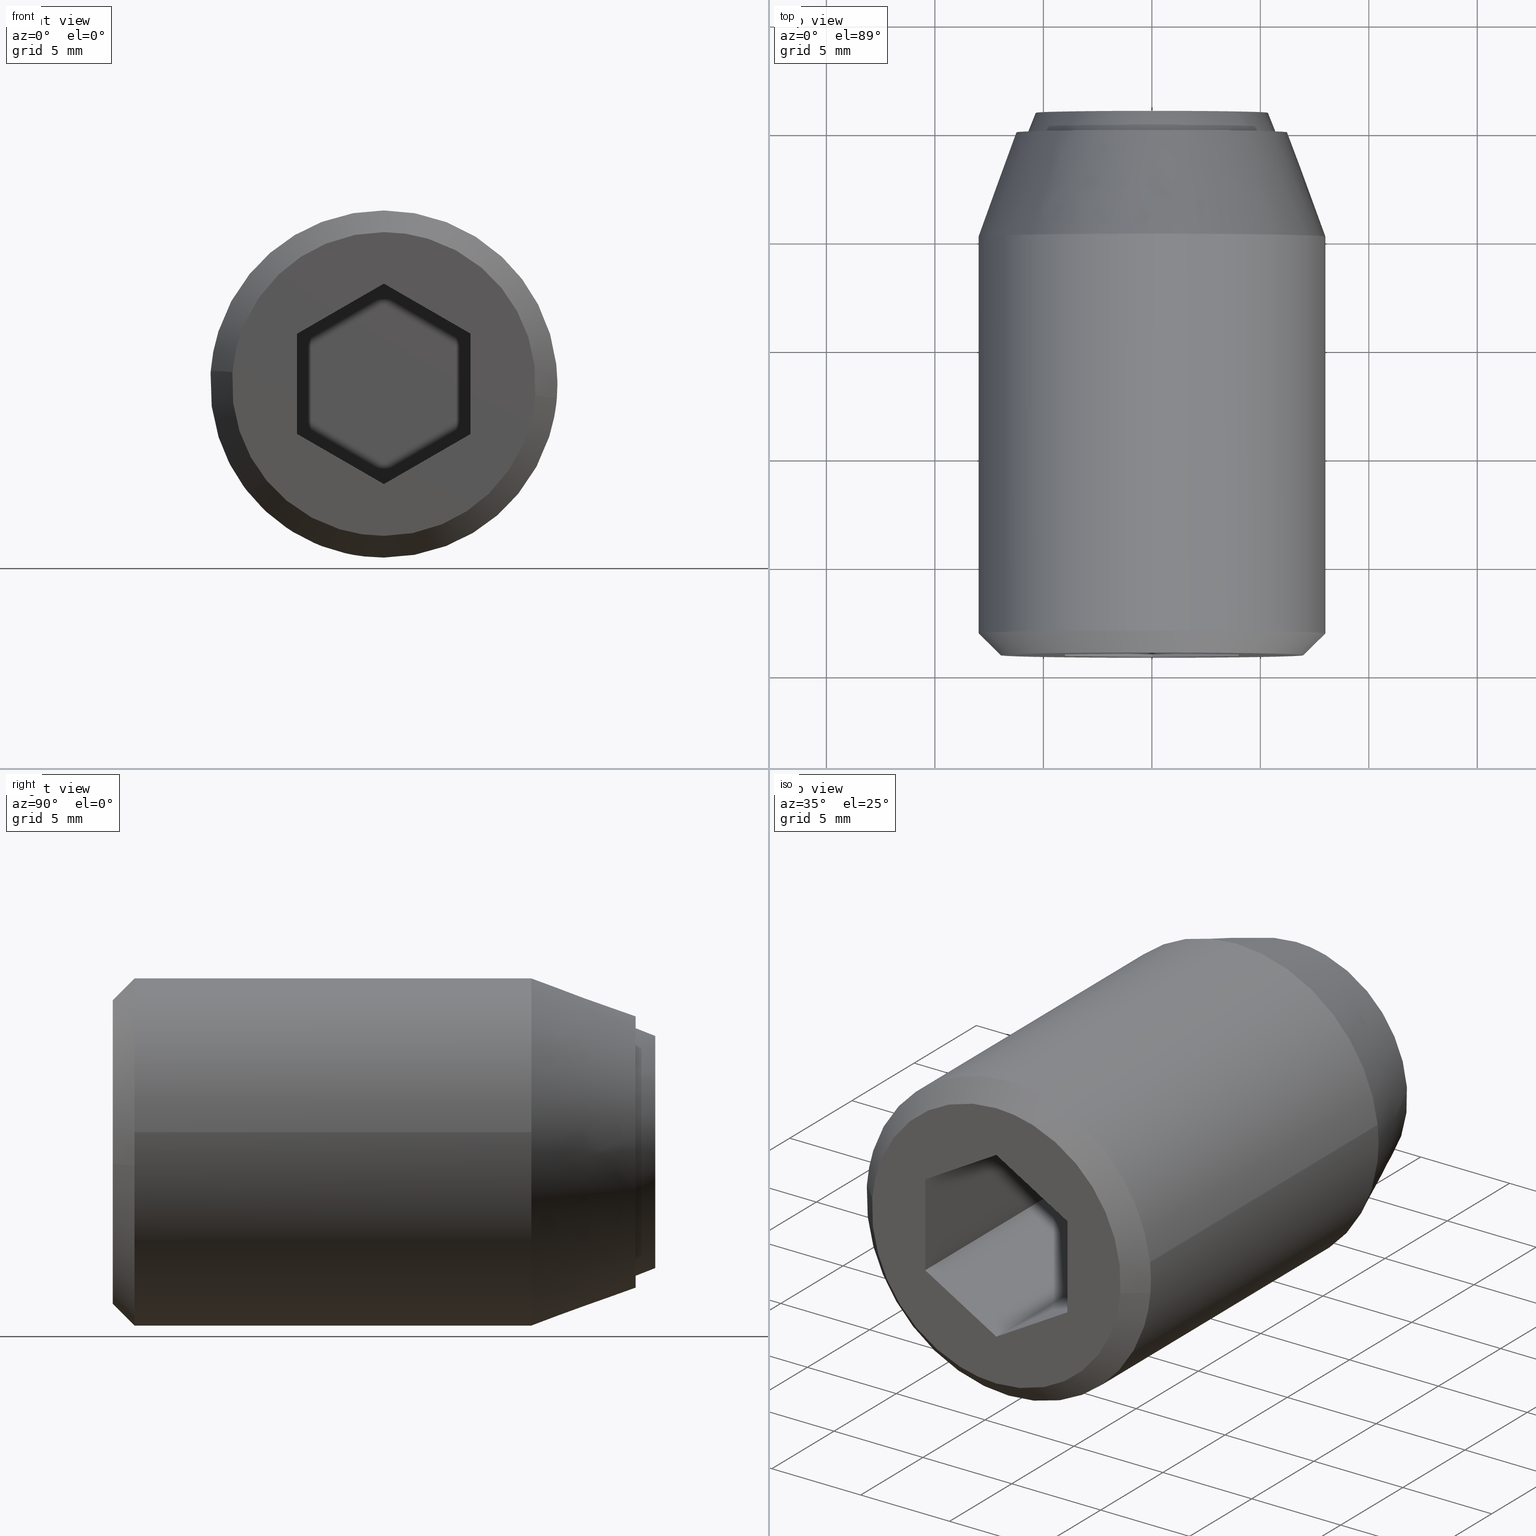
[diagram: canonical four-view strip — front | top / right | iso, engineering-drawing reading convention]
A machine part, canonical four-view strip (front | top / right | iso — engineering-drawing reading convention). The complete STEP part file that produces these views, byte-faithful:
ISO-10303-21;
HEADER;
/****************************************************************
 * Generated by software with PDE/Lib inside                    *
 * PDElib Version 4.4.1-0003, patched  Thursday August 19 11:58 *
 * International Technegroup Inc. (www.iti-oh.com)              *
 ****************************************************************/
FILE_DESCRIPTION((''),'2;1');
FILE_NAME('','2005-07-15T11:37:35',(''),(''),'','CADfix','');
FILE_SCHEMA(('AUTOMOTIVE_DESIGN'));
ENDSEC;
DATA;
#5=APPLICATION_CONTEXT('automotive design');
#6=APPLICATION_PROTOCOL_DEFINITION('Draft International Standard','automotive_design',1998,#5);
#7=PRODUCT_CONTEXT('None',#5,'mechanical');
#8=PRODUCT('body','','None',(#7));
#9=PRODUCT_RELATED_PRODUCT_CATEGORY('part','description',(#8));
#10=PRODUCT_DEFINITION_FORMATION('None','None',#8);
#11=PRODUCT_DEFINITION_CONTEXT('part definition',#5,'design');
#12=PRODUCT_DEFINITION('None','None',#10,#11);
#18=(NAMED_UNIT(*)PLANE_ANGLE_UNIT()SI_UNIT($,.RADIAN.));
#19=DIMENSIONAL_EXPONENTS(0.0,0.0,0.0,0.0,0.0,0.0,0.0);
#20=PLANE_ANGLE_MEASURE_WITH_UNIT(PLANE_ANGLE_MEASURE(0.017453292500000),#18);
#24=(CONVERSION_BASED_UNIT('DEGREE',#20)NAMED_UNIT(#19)PLANE_ANGLE_UNIT());
#28=(NAMED_UNIT(*)SI_UNIT($,.STERADIAN.)SOLID_ANGLE_UNIT());
#32=(LENGTH_UNIT()NAMED_UNIT(*)SI_UNIT(.MILLI.,.METRE.));
#34=UNCERTAINTY_MEASURE_WITH_UNIT(LENGTH_MEASURE(0.001000000000000),#32,'DISTANCE_ACCURACY_VALUE','');
#36=(GEOMETRIC_REPRESENTATION_CONTEXT(3)GLOBAL_UNCERTAINTY_ASSIGNED_CONTEXT((#34))GLOBAL_UNIT_ASSIGNED_CONTEXT((#24,#28,#32))REPRESENTATION_CONTEXT('None','None'));
#37=AXIS2_PLACEMENT_3D('',#38,#39,#40);
#38=CARTESIAN_POINT('',(0.0,0.0,0.0));
#39=DIRECTION('',(0.0,0.0,1.0));
#40=DIRECTION('',(1.0,0.0,0.0));
#41=ADVANCED_BREP_SHAPE_REPRESENTATION('',(#37,#945,#1117),#36);
#42=PRODUCT_DEFINITION_SHAPE('','',#12);
#43=SHAPE_DEFINITION_REPRESENTATION(#42,#41);
#44=CARTESIAN_POINT('',(-5.958057158181998,0.225000000000000,0.708205407940551));
#45=CARTESIAN_POINT('',(-5.978325692691634,0.225000000000000,0.537688371827866));
#46=CARTESIAN_POINT('',(-5.988808790531200,0.225000000000000,0.366291237209142));
#47=CARTESIAN_POINT('',(-6.355100027740342,0.225000000000000,-5.622517553322059));
#48=CARTESIAN_POINT('',(-0.366291237209142,0.225000000000000,-5.988808790531200));
#49=CARTESIAN_POINT('',(5.622517553322059,0.225000000000000,-6.355100027740342));
#50=CARTESIAN_POINT('',(5.988808790531200,0.225000000000000,-0.366291237209142));
#51=CARTESIAN_POINT('',(-5.958057158181998,-9.230625000000003,0.708205407940551));
#52=CARTESIAN_POINT('',(-5.978325692691634,-9.230625000000005,0.537688371827866));
#53=CARTESIAN_POINT('',(-5.988808790531200,-9.230625000000003,0.366291237209142));
#54=CARTESIAN_POINT('',(-6.355100027740342,-9.230625000000003,-5.622517553322059));
#55=CARTESIAN_POINT('',(-0.366291237209142,-9.230625000000003,-5.988808790531200));
#56=CARTESIAN_POINT('',(5.622517553322059,-9.230625000000003,-6.355100027740342));
#57=CARTESIAN_POINT('',(5.988808790531200,-9.230625000000003,-0.366291237209142));
#65=(BOUNDED_SURFACE()B_SPLINE_SURFACE(2,1,((#44,#51),(#45,#52),(#46,#53),(#47,#54),(#48,#55),(#49,#56),(#50,#57)),.UNSPECIFIED.,.F.,.F.,.U.)B_SPLINE_SURFACE_WITH_KNOTS((3,2,2,3),(2,2),(0.0,0.397645019878172,10.338770516832451,20.279896013786729),(0.0,9.455625000000005),.UNSPECIFIED.)GEOMETRIC_REPRESENTATION_ITEM()RATIONAL_B_SPLINE_SURFACE(((0.977505800795127,0.977505800795127),(0.988284271247462,0.988284271247462),(1.0,1.0),(0.707106781186548,0.707106781186548),(1.0,1.0),(0.707106781186548,0.707106781186548),(1.0,1.0)))REPRESENTATION_ITEM('')SURFACE());
#66=CARTESIAN_POINT('',(-5.958058090576522,-8.999999999999988,0.708197563715976));
#67=VERTEX_POINT('',#66);
#68=CARTESIAN_POINT('',(0.0,-9.0,-6.0));
#69=VERTEX_POINT('',#68);
#70=CARTESIAN_POINT('',(-5.958058090576522,-8.999999999999988,0.708197563715976));
#71=CARTESIAN_POINT('',(-5.999999999999999,-9.0,0.355340754335878));
#72=CARTESIAN_POINT('',(-6.0,-9.0,0.0));
#73=CARTESIAN_POINT('',(-6.0,-9.000000000000002,-6.0));
#74=CARTESIAN_POINT('',(0.0,-9.0,-6.0));
#82=(BOUNDED_CURVE()B_SPLINE_CURVE(2,(#70,#71,#72,#73,#74),.UNSPECIFIED.,.F.,.U.)B_SPLINE_CURVE_WITH_KNOTS((3,2,3),(0.229562696020986,0.250000000000000,0.500000000000000),.UNSPECIFIED.)CURVE()GEOMETRIC_REPRESENTATION_ITEM()RATIONAL_B_SPLINE_CURVE((0.956027190307925,0.976056209014870,1.0,0.707106781186548,1.0))REPRESENTATION_ITEM(''));
#83=EDGE_CURVE('',#67,#69,#82,.T.);
#84=ORIENTED_EDGE('',*,*,#83,.T.);
#85=CARTESIAN_POINT('',(5.988808889339792,-8.999999999999996,-0.366289621695814));
#86=VERTEX_POINT('',#85);
#87=CARTESIAN_POINT('',(0.0,-9.0,-6.0));
#88=CARTESIAN_POINT('',(5.644237926842608,-9.000000000000002,-6.000000000000001));
#89=CARTESIAN_POINT('',(5.988808889339792,-8.999999999999996,-0.366289621695814));
#97=(BOUNDED_CURVE()B_SPLINE_CURVE(2,(#87,#88,#89),.UNSPECIFIED.,.F.,.U.)B_SPLINE_CURVE_WITH_KNOTS((3,3),(0.500000000000000,0.739333008787393),.UNSPECIFIED.)CURVE()GEOMETRIC_REPRESENTATION_ITEM()RATIONAL_B_SPLINE_CURVE((1.0,0.719603938751809,0.976072141428927))REPRESENTATION_ITEM(''));
#98=EDGE_CURVE('',#69,#86,#97,.T.);
#99=ORIENTED_EDGE('',*,*,#98,.T.);
#100=CARTESIAN_POINT('',(5.988808888122247,-2.220446E-016,-0.366289641602664));
#101=VERTEX_POINT('',#100);
#102=CARTESIAN_POINT('',(5.988808888122247,-2.220446E-016,-0.366289641602664));
#103=CARTESIAN_POINT('',(5.988808889339792,-8.999999999999996,-0.366289621695814));
#104=QUASI_UNIFORM_CURVE('',1,(#102,#103),.UNSPECIFIED.,.F.,.U.);
#105=EDGE_CURVE('',#101,#86,#104,.T.);
#106=ORIENTED_EDGE('',*,*,#105,.F.);
#107=CARTESIAN_POINT('',(0.0,0.0,-6.0));
#108=VERTEX_POINT('',#107);
#109=CARTESIAN_POINT('',(0.0,0.0,-6.0));
#110=CARTESIAN_POINT('',(5.644237908046054,0.0,-6.000000000000002));
#111=CARTESIAN_POINT('',(5.988808888122247,-2.220446E-016,-0.366289641602664));
#119=(BOUNDED_CURVE()B_SPLINE_CURVE(2,(#109,#110,#111),.UNSPECIFIED.,.F.,.U.)B_SPLINE_CURVE_WITH_KNOTS((3,3),(0.500000000000000,0.739333008213846),.UNSPECIFIED.)CURVE()GEOMETRIC_REPRESENTATION_ITEM()RATIONAL_B_SPLINE_CURVE((1.0,0.719603939423761,0.976072140199706))REPRESENTATION_ITEM(''));
#120=EDGE_CURVE('',#108,#101,#119,.T.);
#121=ORIENTED_EDGE('',*,*,#120,.F.);
#122=CARTESIAN_POINT('',(-5.958058079074856,-2.271543E-016,0.708197660480432));
#123=VERTEX_POINT('',#122);
#124=CARTESIAN_POINT('',(-5.958058079074856,-2.271543E-016,0.708197660480432));
#125=CARTESIAN_POINT('',(-6.000000000000001,0.0,0.355340803229577));
#126=CARTESIAN_POINT('',(-6.0,0.0,0.0));
#127=CARTESIAN_POINT('',(-6.0,0.0,-6.0));
#128=CARTESIAN_POINT('',(0.0,0.0,-6.0));
#136=(BOUNDED_CURVE()B_SPLINE_CURVE(2,(#124,#125,#126,#127,#128),.UNSPECIFIED.,.F.,.U.)B_SPLINE_CURVE_WITH_KNOTS((3,2,3),(0.229562693276214,0.250000000000000,0.500000000000000),.UNSPECIFIED.)CURVE()GEOMETRIC_REPRESENTATION_ITEM()RATIONAL_B_SPLINE_CURVE((0.956027184928048,0.976056205799170,1.0,0.707106781186548,1.0))REPRESENTATION_ITEM(''));
#137=EDGE_CURVE('',#123,#108,#136,.T.);
#138=ORIENTED_EDGE('',*,*,#137,.F.);
#139=CARTESIAN_POINT('',(-5.958058079074856,-2.271543E-016,0.708197660480432));
#140=CARTESIAN_POINT('',(-5.958058090576522,-8.999999999999988,0.708197563715976));
#141=QUASI_UNIFORM_CURVE('',1,(#139,#140),.UNSPECIFIED.,.F.,.U.);
#142=EDGE_CURVE('',#123,#67,#141,.T.);
#143=ORIENTED_EDGE('',*,*,#142,.T.);
#144=EDGE_LOOP('',(#84,#99,#106,#121,#138,#143));
#145=FACE_OUTER_BOUND('',#144,.T.);
#146=ADVANCED_FACE('',(#145),#65,.F.);
#147=CARTESIAN_POINT('',(5.988808790531200,0.225000000000000,-0.366291237209142));
#148=CARTESIAN_POINT('',(6.355100027740342,0.225000000000000,5.622517553322059));
#149=CARTESIAN_POINT('',(0.366291237209142,0.225000000000000,5.988808790531200));
#150=CARTESIAN_POINT('',(-5.289260945037006,0.225000000000000,6.334717180395164));
#151=CARTESIAN_POINT('',(-5.958057158181998,0.225000000000000,0.708205407940551));
#152=CARTESIAN_POINT('',(5.988808790531200,-9.230625000000003,-0.366291237209142));
#153=CARTESIAN_POINT('',(6.355100027740342,-9.230625000000003,5.622517553322059));
#154=CARTESIAN_POINT('',(0.366291237209142,-9.230625000000003,5.988808790531200));
#155=CARTESIAN_POINT('',(-5.289260945037006,-9.230625000000003,6.334717180395164));
#156=CARTESIAN_POINT('',(-5.958057158181998,-9.230625000000003,0.708205407940551));
#164=(BOUNDED_SURFACE()B_SPLINE_SURFACE(2,1,((#147,#152),(#148,#153),(#149,#154),(#150,#155),(#151,#156)),.UNSPECIFIED.,.F.,.F.,.U.)B_SPLINE_SURFACE_WITH_KNOTS((3,2,3),(2,2),(0.0,9.941125496954278,19.484605974030391),(0.0,9.455625000000005),.UNSPECIFIED.)GEOMETRIC_REPRESENTATION_ITEM()RATIONAL_B_SPLINE_SURFACE(((1.0,1.0),(0.707106781186548,0.707106781186548),(1.0,1.0),(0.718822509939086,0.718822509939086),(0.977505800795127,0.977505800795127)))REPRESENTATION_ITEM('')SURFACE());
#165=CARTESIAN_POINT('',(0.0,-9.0,6.0));
#166=VERTEX_POINT('',#165);
#167=CARTESIAN_POINT('',(0.0,-9.0,6.0));
#168=CARTESIAN_POINT('',(-5.329054221188473,-9.000000000000002,6.000000000000001));
#169=CARTESIAN_POINT('',(-5.958058090576522,-8.999999999999988,0.708197563715976));
#177=(BOUNDED_CURVE()B_SPLINE_CURVE(2,(#167,#168,#169),.UNSPECIFIED.,.F.,.U.)B_SPLINE_CURVE_WITH_KNOTS((3,3),(0.0,0.229562696020986),.UNSPECIFIED.)CURVE()GEOMETRIC_REPRESENTATION_ITEM()RATIONAL_B_SPLINE_CURVE((1.0,0.731050572171677,0.956027190307925))REPRESENTATION_ITEM(''));
#178=EDGE_CURVE('',#166,#67,#177,.T.);
#179=ORIENTED_EDGE('',*,*,#178,.T.);
#180=ORIENTED_EDGE('',*,*,#142,.F.);
#181=CARTESIAN_POINT('',(0.0,0.0,6.0));
#182=VERTEX_POINT('',#181);
#183=CARTESIAN_POINT('',(0.0,0.0,6.0));
#184=CARTESIAN_POINT('',(-5.329054134030380,0.0,6.000000000000002));
#185=CARTESIAN_POINT('',(-5.958058079074856,-2.271543E-016,0.708197660480432));
#193=(BOUNDED_CURVE()B_SPLINE_CURVE(2,(#183,#184,#185),.UNSPECIFIED.,.F.,.U.)B_SPLINE_CURVE_WITH_KNOTS((3,3),(0.0,0.229562693276214),.UNSPECIFIED.)CURVE()GEOMETRIC_REPRESENTATION_ITEM()RATIONAL_B_SPLINE_CURVE((1.0,0.731050575387378,0.956027184928048))REPRESENTATION_ITEM(''));
#194=EDGE_CURVE('',#182,#123,#193,.T.);
#195=ORIENTED_EDGE('',*,*,#194,.F.);
#196=CARTESIAN_POINT('',(5.988808888122247,-2.220446E-016,-0.366289641602664));
#197=CARTESIAN_POINT('',(6.0,0.0,-0.183315779751348));
#198=CARTESIAN_POINT('',(6.0,0.0,0.0));
#199=CARTESIAN_POINT('',(6.0,0.0,6.0));
#200=CARTESIAN_POINT('',(0.0,0.0,6.0));
#208=(BOUNDED_CURVE()B_SPLINE_CURVE(2,(#196,#197,#198,#199,#200),.UNSPECIFIED.,.F.,.U.)B_SPLINE_CURVE_WITH_KNOTS((3,2,3),(0.739333008213846,0.750000000000000,1.0),.UNSPECIFIED.)CURVE()GEOMETRIC_REPRESENTATION_ITEM()RATIONAL_B_SPLINE_CURVE((0.976072140199706,0.987502841762787,1.0,0.707106781186548,1.0))REPRESENTATION_ITEM(''));
#209=EDGE_CURVE('',#101,#182,#208,.T.);
#210=ORIENTED_EDGE('',*,*,#209,.F.);
#211=ORIENTED_EDGE('',*,*,#105,.T.);
#212=CARTESIAN_POINT('',(5.988808889339792,-8.999999999999996,-0.366289621695814));
#213=CARTESIAN_POINT('',(6.0,-9.0,-0.183315769770015));
#214=CARTESIAN_POINT('',(6.0,-9.0,0.0));
#215=CARTESIAN_POINT('',(6.0,-9.000000000000002,6.0));
#216=CARTESIAN_POINT('',(0.0,-9.0,6.0));
#224=(BOUNDED_CURVE()B_SPLINE_CURVE(2,(#212,#213,#214,#215,#216),.UNSPECIFIED.,.F.,.U.)B_SPLINE_CURVE_WITH_KNOTS((3,2,3),(0.739333008787393,0.750000000000000,1.0),.UNSPECIFIED.)CURVE()GEOMETRIC_REPRESENTATION_ITEM()RATIONAL_B_SPLINE_CURVE((0.976072141428927,0.987502842434739,1.0,0.707106781186548,1.0))REPRESENTATION_ITEM(''));
#225=EDGE_CURVE('',#86,#166,#224,.T.);
#226=ORIENTED_EDGE('',*,*,#225,.T.);
#227=EDGE_LOOP('',(#179,#180,#195,#210,#211,#226));
#228=FACE_OUTER_BOUND('',#227,.T.);
#229=ADVANCED_FACE('',(#228),#164,.F.);
#230=CARTESIAN_POINT('',(-5.033104737249632,0.120202150000000,-3.631170027191690));
#231=CARTESIAN_POINT('',(-3.313123014859355,0.120202150000000,-6.015208254572740));
#232=CARTESIAN_POINT('',(-0.378882498488206,0.120202150000000,-6.194674092705710));
#233=CARTESIAN_POINT('',(5.815791594217503,0.120202150000000,-6.573556591193916));
#234=CARTESIAN_POINT('',(6.194674092705709,0.120202150000000,-0.378882498488207));
#235=CARTESIAN_POINT('',(6.573556591193915,0.120202150000000,5.815791594217502));
#236=CARTESIAN_POINT('',(0.378882498488206,0.120202150000000,6.194674092705708));
#237=CARTESIAN_POINT('',(-5.815791594217503,0.120202150000000,6.573556591193914));
#238=CARTESIAN_POINT('',(-6.194674092705709,0.120202150000000,0.378882498488205));
#239=CARTESIAN_POINT('',(-6.524155679928798,-4.931293203749999,-4.706899576787980));
#240=CARTESIAN_POINT('',(-4.294631537413486,-4.931293203750000,-7.797206127975497));
#241=CARTESIAN_POINT('',(-0.491125961723622,-4.931293203750000,-8.029838494741666));
#242=CARTESIAN_POINT('',(7.538712533018043,-4.931293203750001,-8.520964456465288));
#243=CARTESIAN_POINT('',(8.029838494741664,-4.931293203750000,-0.491125961723623));
#244=CARTESIAN_POINT('',(8.520964456465288,-4.931293203750001,7.538712533018041));
#245=CARTESIAN_POINT('',(0.491125961723622,-4.931293203750000,8.029838494741663));
#246=CARTESIAN_POINT('',(-7.538712533018043,-4.931293203750001,8.520964456465284));
#247=CARTESIAN_POINT('',(-8.029838494741664,-4.931293203750000,0.491125961723621));
#255=(BOUNDED_SURFACE()B_SPLINE_SURFACE(2,1,((#230,#239),(#231,#240),(#232,#241),(#233,#242),(#234,#243),(#235,#244),(#236,#245),(#237,#246),(#238,#247)),.UNSPECIFIED.,.F.,.F.,.U.)B_SPLINE_SURFACE_WITH_KNOTS((3,2,2,2,3),(2,2),(0.0,7.464314790066237,20.793448343755941,34.122581897445663,47.451715451135371),(0.0,5.375689005745859),.UNSPECIFIED.)GEOMETRIC_REPRESENTATION_ITEM()RATIONAL_B_SPLINE_SURFACE(((0.855662221768731,0.855662221768731),(0.835979797464467,0.835979797464467),(1.0,1.0),(0.707106781186548,0.707106781186548),(1.0,1.0),(0.707106781186548,0.707106781186548),(1.0,1.0),(0.707106781186548,0.707106781186548),(1.0,1.0)))REPRESENTATION_ITEM('')SURFACE());
#256=CARTESIAN_POINT('',(-5.068584063278948,0.000005180892441,-3.656765240256217));
#257=VERTEX_POINT('',#256);
#258=CARTESIAN_POINT('',(0.0,0.0,-6.250000000000001));
#259=VERTEX_POINT('',#258);
#260=CARTESIAN_POINT('',(-5.068584063278948,0.000005180892441,-3.656765240256217));
#261=CARTESIAN_POINT('',(-3.197678362424754,0.000002590446221,-6.249999448357617));
#262=CARTESIAN_POINT('',(0.0,0.0,-6.250000000000001));
#270=(BOUNDED_CURVE()B_SPLINE_CURVE(2,(#260,#261,#262),.UNSPECIFIED.,.F.,.U.)B_SPLINE_CURVE_WITH_KNOTS((3,3),(0.850743018759153,1.0),.UNSPECIFIED.)CURVE()GEOMETRIC_REPRESENTATION_ITEM()RATIONAL_B_SPLINE_CURVE((0.859068229106279,0.825134569335957,1.0))REPRESENTATION_ITEM(''));
#271=EDGE_CURVE('',#257,#259,#270,.T.);
#272=ORIENTED_EDGE('',*,*,#271,.T.);
#273=CARTESIAN_POINT('',(0.0,0.0,6.249999999999999));
#274=VERTEX_POINT('',#273);
#275=CARTESIAN_POINT('',(0.0,0.0,-6.250000000000001));
#276=CARTESIAN_POINT('',(6.249999999999999,0.0,-6.250000000000002));
#277=CARTESIAN_POINT('',(6.250000000000000,0.0,-1.291960E-015));
#278=CARTESIAN_POINT('',(6.249999999999999,0.0,6.249999999999999));
#279=CARTESIAN_POINT('',(0.0,0.0,6.249999999999999));
#287=(BOUNDED_CURVE()B_SPLINE_CURVE(2,(#275,#276,#277,#278,#279),.UNSPECIFIED.,.F.,.U.)B_SPLINE_CURVE_WITH_KNOTS((3,2,3),(0.0,0.250000000000000,0.500000000000000),.UNSPECIFIED.)CURVE()GEOMETRIC_REPRESENTATION_ITEM()RATIONAL_B_SPLINE_CURVE((1.0,0.707106781186547,1.0,0.707106781186547,1.0))REPRESENTATION_ITEM(''));
#288=EDGE_CURVE('',#259,#274,#287,.T.);
#289=ORIENTED_EDGE('',*,*,#288,.T.);
#290=CARTESIAN_POINT('',(-6.238342490136722,-1.825602E-012,0.381553372102844));
#291=VERTEX_POINT('',#290);
#292=CARTESIAN_POINT('',(0.0,0.0,6.249999999999999));
#293=CARTESIAN_POINT('',(-5.879412918141829,0.0,6.249999999999999));
#294=CARTESIAN_POINT('',(-6.238342490136722,-1.825602E-012,0.381553372102844));
#302=(BOUNDED_CURVE()B_SPLINE_CURVE(2,(#292,#293,#294),.UNSPECIFIED.,.F.,.U.)B_SPLINE_CURVE_WITH_KNOTS((3,3),(0.500000000000000,0.739332962241419),.UNSPECIFIED.)CURVE()GEOMETRIC_REPRESENTATION_ITEM()RATIONAL_B_SPLINE_CURVE((1.0,0.719603993283810,0.976072041672024))REPRESENTATION_ITEM(''));
#303=EDGE_CURVE('',#274,#291,#302,.T.);
#304=ORIENTED_EDGE('',*,*,#303,.T.);
#305=CARTESIAN_POINT('',(-7.985078611291660,-4.808085996040576,0.488384631610957));
#306=VERTEX_POINT('',#305);
#307=CARTESIAN_POINT('',(-6.238342490136722,-1.825602E-012,0.381553372102844));
#308=CARTESIAN_POINT('',(-7.985078611291660,-4.808085996040576,0.488384631610957));
#309=QUASI_UNIFORM_CURVE('',1,(#307,#308),.UNSPECIFIED.,.F.,.U.);
#310=EDGE_CURVE('',#291,#306,#309,.T.);
#311=ORIENTED_EDGE('',*,*,#310,.T.);
#312=CARTESIAN_POINT('',(0.0,-4.808085999999999,7.999999999999998));
#313=VERTEX_POINT('',#312);
#314=CARTESIAN_POINT('',(0.0,-4.808085999999999,7.999999999999998));
#315=CARTESIAN_POINT('',(-7.525652014319042,-4.808086000000000,7.999999999999999));
#316=CARTESIAN_POINT('',(-7.985078611291660,-4.808085996040576,0.488384631610957));
#324=(BOUNDED_CURVE()B_SPLINE_CURVE(2,(#314,#315,#316),.UNSPECIFIED.,.F.,.U.)B_SPLINE_CURVE_WITH_KNOTS((3,3),(0.500000000000000,0.739333041860781),.UNSPECIFIED.)CURVE()GEOMETRIC_REPRESENTATION_ITEM()RATIONAL_B_SPLINE_CURVE((1.0,0.719603900003925,0.976072212311532))REPRESENTATION_ITEM(''));
#325=EDGE_CURVE('',#313,#306,#324,.T.);
#326=ORIENTED_EDGE('',*,*,#325,.F.);
#327=CARTESIAN_POINT('',(7.947753822738545,-4.808085999999999,0.912802921302848));
#328=VERTEX_POINT('',#327);
#329=CARTESIAN_POINT('',(7.947753822738544,-4.808086000000000,0.912802921302848));
#330=CARTESIAN_POINT('',(7.133786211062851,-4.808085999999999,7.999999999999999));
#331=CARTESIAN_POINT('',(0.0,-4.808085999999999,7.999999999999998));
#339=(BOUNDED_CURVE()B_SPLINE_CURVE(2,(#329,#330,#331),.UNSPECIFIED.,.F.,.U.)B_SPLINE_CURVE_WITH_KNOTS((3,3),(0.269767704844007,0.500000000000000),.UNSPECIFIED.)CURVE()GEOMETRIC_REPRESENTATION_ITEM()RATIONAL_B_SPLINE_CURVE((0.957343837127389,0.730266087987810,1.0))REPRESENTATION_ITEM(''));
#340=EDGE_CURVE('',#328,#313,#339,.T.);
#341=ORIENTED_EDGE('',*,*,#340,.F.);
#342=CARTESIAN_POINT('',(0.0,-4.808085999999999,-8.000000000000002));
#343=VERTEX_POINT('',#342);
#344=CARTESIAN_POINT('',(0.0,-4.808085999999999,-8.000000000000002));
#345=CARTESIAN_POINT('',(8.0,-4.808086000000000,-8.000000000000002));
#346=CARTESIAN_POINT('',(8.0,-4.808085999999999,-1.291960E-015));
#347=CARTESIAN_POINT('',(8.0,-4.808086000000000,0.457896670063406));
#348=CARTESIAN_POINT('',(7.947753822738544,-4.808086000000000,0.912802921302848));
#356=(BOUNDED_CURVE()B_SPLINE_CURVE(2,(#344,#345,#346,#347,#348),.UNSPECIFIED.,.F.,.U.)B_SPLINE_CURVE_WITH_KNOTS((3,2,3),(0.0,0.250000000000000,0.269767704844007),.UNSPECIFIED.)CURVE()GEOMETRIC_REPRESENTATION_ITEM()RATIONAL_B_SPLINE_CURVE((1.0,0.707106781186548,1.0,0.976840693198738,0.957343837127389))REPRESENTATION_ITEM(''));
#357=EDGE_CURVE('',#343,#328,#356,.T.);
#358=ORIENTED_EDGE('',*,*,#357,.F.);
#359=CARTESIAN_POINT('',(-6.487788583764719,-4.808086000000214,-4.680662270702025));
#360=VERTEX_POINT('',#359);
#361=CARTESIAN_POINT('',(-6.487788583764719,-4.808086000000214,-4.680662270702026));
#362=CARTESIAN_POINT('',(-4.093028231657743,-4.808085999999999,-8.000000000000002));
#363=CARTESIAN_POINT('',(0.0,-4.808085999999999,-8.000000000000002));
#371=(BOUNDED_CURVE()B_SPLINE_CURVE(2,(#361,#362,#363),.UNSPECIFIED.,.F.,.U.)B_SPLINE_CURVE_WITH_KNOTS((3,3),(0.850743050382079,1.0),.UNSPECIFIED.)CURVE()GEOMETRIC_REPRESENTATION_ITEM()RATIONAL_B_SPLINE_CURVE((0.859068214727309,0.825134606384519,1.0))REPRESENTATION_ITEM(''));
#372=EDGE_CURVE('',#360,#343,#371,.T.);
#373=ORIENTED_EDGE('',*,*,#372,.F.);
#374=CARTESIAN_POINT('',(-5.068584063278948,0.000005180892441,-3.656765240256217));
#375=CARTESIAN_POINT('',(-6.487788583764719,-4.808086000000214,-4.680662270702025));
#376=QUASI_UNIFORM_CURVE('',1,(#374,#375),.UNSPECIFIED.,.F.,.U.);
#377=EDGE_CURVE('',#257,#360,#376,.T.);
#378=ORIENTED_EDGE('',*,*,#377,.F.);
#379=EDGE_LOOP('',(#272,#289,#304,#311,#326,#341,#358,#373,#378));
#380=FACE_OUTER_BOUND('',#379,.T.);
#381=ADVANCED_FACE('',(#380),#255,.T.);
#382=CARTESIAN_POINT('',(-6.194674092705709,0.120202150000000,0.378882498488205));
#383=CARTESIAN_POINT('',(-6.329993708723172,0.120202150000000,-1.833573666478589));
#384=CARTESIAN_POINT('',(-5.033104737249632,0.120202150000000,-3.631170027191690));
#385=CARTESIAN_POINT('',(-8.029838494741664,-4.931293203750000,0.491125961723621));
#386=CARTESIAN_POINT('',(-8.205246376662386,-4.931293203750000,-2.376767557048920));
#387=CARTESIAN_POINT('',(-6.524155679928798,-4.931293203749999,-4.706899576787980));
#395=(BOUNDED_SURFACE()B_SPLINE_SURFACE(2,1,((#382,#385),(#383,#386),(#384,#387)),.UNSPECIFIED.,.F.,.F.,.U.)B_SPLINE_SURFACE_WITH_KNOTS((3,3),(2,2),(0.0,5.850364563902502),(0.0,5.375689005745859),.UNSPECIFIED.)GEOMETRIC_REPRESENTATION_ITEM()RATIONAL_B_SPLINE_SURFACE(((1.0,1.0),(0.871126983722081,0.871126983722081),(0.855662221768731,0.855662221768731)))REPRESENTATION_ITEM('')SURFACE());
#396=CARTESIAN_POINT('',(-6.238342490136722,-1.825602E-012,0.381553372102844));
#397=CARTESIAN_POINT('',(-6.249999934591597,0.000000221597870,0.190954817806897));
#398=CARTESIAN_POINT('',(-6.249999867877746,0.000000447615944,0.000000095312304));
#399=CARTESIAN_POINT('',(-6.249999162420735,0.000002837614977,-2.019226043818301));
#400=CARTESIAN_POINT('',(-5.068584063278948,0.000005180892441,-3.656765240256217));
#408=(BOUNDED_CURVE()B_SPLINE_CURVE(2,(#396,#397,#398,#399,#400),.UNSPECIFIED.,.F.,.U.)B_SPLINE_CURVE_WITH_KNOTS((3,2,3),(0.739332962241418,0.750000000000000,0.850743018759153),.UNSPECIFIED.)CURVE()GEOMETRIC_REPRESENTATION_ITEM()RATIONAL_B_SPLINE_CURVE((0.976072041672022,0.987502787902737,1.0,0.881972211850590,0.859068229106279))REPRESENTATION_ITEM(''));
#409=EDGE_CURVE('',#291,#257,#408,.T.);
#410=ORIENTED_EDGE('',*,*,#409,.T.);
#411=ORIENTED_EDGE('',*,*,#377,.T.);
#412=CARTESIAN_POINT('',(-7.985078611291660,-4.808085996040576,0.488384631610957));
#413=CARTESIAN_POINT('',(-8.0,-4.808085999999999,0.244420258933266));
#414=CARTESIAN_POINT('',(-8.0,-4.808085999999999,-1.291960E-015));
#415=CARTESIAN_POINT('',(-8.0,-4.808085999999999,-2.584611029428961));
#416=CARTESIAN_POINT('',(-6.487788583764719,-4.808086000000214,-4.680662270702025));
#424=(BOUNDED_CURVE()B_SPLINE_CURVE(2,(#412,#413,#414,#415,#416),.UNSPECIFIED.,.F.,.U.)B_SPLINE_CURVE_WITH_KNOTS((3,2,3),(0.739333041860781,0.750000000000000,0.850743050382080),.UNSPECIFIED.)CURVE()GEOMETRIC_REPRESENTATION_ITEM()RATIONAL_B_SPLINE_CURVE((0.976072212311532,0.987502881182623,1.0,0.881972174802028,0.859068214727308))REPRESENTATION_ITEM(''));
#425=EDGE_CURVE('',#306,#360,#424,.T.);
#426=ORIENTED_EDGE('',*,*,#425,.F.);
#427=ORIENTED_EDGE('',*,*,#310,.F.);
#428=EDGE_LOOP('',(#410,#411,#426,#427));
#429=FACE_OUTER_BOUND('',#428,.T.);
#430=ADVANCED_FACE('',(#429),#395,.T.);
#431=CARTESIAN_POINT('',(7.947753547485708,-4.350788149999998,0.912805317922882));
#432=CARTESIAN_POINT('',(7.182521220688651,-4.350788149999996,7.575647679305657));
#433=CARTESIAN_POINT('',(0.488388316278856,-4.350788149999998,7.985078387374933));
#434=CARTESIAN_POINT('',(-7.496690071096078,-4.350788149999999,8.473466703653788));
#435=CARTESIAN_POINT('',(-7.985078387374934,-4.350788149999998,0.488388316278855));
#436=CARTESIAN_POINT('',(7.947753547485708,-23.568730296249999,0.912805317922882));
#437=CARTESIAN_POINT('',(7.182521220688651,-23.568730296249999,7.575647679305657));
#438=CARTESIAN_POINT('',(0.488388316278856,-23.568730296249999,7.985078387374933));
#439=CARTESIAN_POINT('',(-7.496690071096078,-23.568730296249999,8.473466703653788));
#440=CARTESIAN_POINT('',(-7.985078387374934,-23.568730296249999,0.488388316278855));
#448=(BOUNDED_SURFACE()B_SPLINE_SURFACE(2,1,((#431,#436),(#432,#437),(#433,#438),(#434,#439),(#435,#440)),.UNSPECIFIED.,.F.,.F.,.U.)B_SPLINE_SURFACE_WITH_KNOTS((3,2,3),(2,2),(0.0,11.664253916426350,24.919087912365391),(0.0,19.217942146250000),.UNSPECIFIED.)GEOMETRIC_REPRESENTATION_ITEM()RATIONAL_B_SPLINE_SURFACE(((0.938140952186599,0.938140952186599),(0.742253967444162,0.742253967444162),(1.0,1.0),(0.707106781186548,0.707106781186548),(1.0,1.0)))REPRESENTATION_ITEM('')SURFACE());
#449=CARTESIAN_POINT('',(7.947753547484348,-23.100000000000001,0.912805317934730));
#450=VERTEX_POINT('',#449);
#451=CARTESIAN_POINT('',(0.0,-23.100000000000001,7.999999999999998));
#452=VERTEX_POINT('',#451);
#453=CARTESIAN_POINT('',(7.947753547484348,-23.100000000000001,0.912805317934730));
#454=CARTESIAN_POINT('',(7.133784045729899,-23.099999999999994,7.999999999999999));
#455=CARTESIAN_POINT('',(0.0,-23.100000000000001,7.999999999999998));
#463=(BOUNDED_CURVE()B_SPLINE_CURVE(2,(#453,#454,#455),.UNSPECIFIED.,.F.,.U.)B_SPLINE_CURVE_WITH_KNOTS((3,3),(0.269767755877114,0.500000000000000),.UNSPECIFIED.)CURVE()GEOMETRIC_REPRESENTATION_ITEM()RATIONAL_B_SPLINE_CURVE((0.957343736459668,0.730266147776813,1.0))REPRESENTATION_ITEM(''));
#464=EDGE_CURVE('',#450,#452,#463,.T.);
#465=ORIENTED_EDGE('',*,*,#464,.F.);
#466=CARTESIAN_POINT('',(7.947753822738545,-4.808085999999999,0.912802921302848));
#467=CARTESIAN_POINT('',(7.947753547484348,-23.100000000000001,0.912805317934730));
#468=QUASI_UNIFORM_CURVE('',1,(#466,#467),.UNSPECIFIED.,.F.,.U.);
#469=EDGE_CURVE('',#328,#450,#468,.T.);
#470=ORIENTED_EDGE('',*,*,#469,.F.);
#471=ORIENTED_EDGE('',*,*,#340,.T.);
#472=ORIENTED_EDGE('',*,*,#325,.T.);
#473=CARTESIAN_POINT('',(-7.985078433277944,-23.099999999999991,0.488387565770133));
#474=VERTEX_POINT('',#473);
#475=CARTESIAN_POINT('',(-7.985078611291660,-4.808085996040576,0.488384631610957));
#476=CARTESIAN_POINT('',(-7.985078433277944,-23.099999999999991,0.488387565770133));
#477=QUASI_UNIFORM_CURVE('',1,(#475,#476),.UNSPECIFIED.,.F.,.U.);
#478=EDGE_CURVE('',#306,#474,#477,.T.);
#479=ORIENTED_EDGE('',*,*,#478,.T.);
#480=CARTESIAN_POINT('',(-7.975338669865066,-23.099999999999898,0.627672765823566));
#481=VERTEX_POINT('',#480);
#482=CARTESIAN_POINT('',(-7.975338669865066,-23.099999999999891,0.627672765823566));
#483=CARTESIAN_POINT('',(-7.980816346106935,-23.100000000000005,0.558072290014730));
#484=CARTESIAN_POINT('',(-7.985078433277944,-23.099999999999991,0.488387565770133));
#492=(BOUNDED_CURVE()B_SPLINE_CURVE(2,(#482,#483,#484),.UNSPECIFIED.,.F.,.U.)B_SPLINE_CURVE_WITH_KNOTS((3,3),(0.736331300632733,0.739332994676935),.UNSPECIFIED.)CURVE()GEOMETRIC_REPRESENTATION_ITEM()RATIONAL_B_SPLINE_CURVE((0.969723356171744,0.972855509409964,0.976072111187519))REPRESENTATION_ITEM(''));
#493=EDGE_CURVE('',#481,#474,#492,.T.);
#494=ORIENTED_EDGE('',*,*,#493,.F.);
#495=CARTESIAN_POINT('',(0.0,-23.100000000000001,7.999999999999998));
#496=CARTESIAN_POINT('',(-7.395123933264181,-23.099999999999998,7.999999999999999));
#497=CARTESIAN_POINT('',(-7.975338669865066,-23.099999999999898,0.627672765823566));
#505=(BOUNDED_CURVE()B_SPLINE_CURVE(2,(#495,#496,#497),.UNSPECIFIED.,.F.,.U.)B_SPLINE_CURVE_WITH_KNOTS((3,3),(0.500000000000000,0.736331300632733),.UNSPECIFIED.)CURVE()GEOMETRIC_REPRESENTATION_ITEM()RATIONAL_B_SPLINE_CURVE((1.0,0.723120658605237,0.969723356171744))REPRESENTATION_ITEM(''));
#506=EDGE_CURVE('',#452,#481,#505,.T.);
#507=ORIENTED_EDGE('',*,*,#506,.F.);
#508=EDGE_LOOP('',(#465,#470,#471,#472,#479,#494,#507));
#509=FACE_OUTER_BOUND('',#508,.T.);
#510=ADVANCED_FACE('',(#509),#448,.T.);
#511=CARTESIAN_POINT('',(-7.985078387374934,-4.350788149999998,0.488388316278855));
#512=CARTESIAN_POINT('',(-8.473466703653790,-4.350788149999999,-7.496690071096079));
#513=CARTESIAN_POINT('',(-0.488388316278856,-4.350788149999998,-7.985078387374935));
#514=CARTESIAN_POINT('',(7.496690071096078,-4.350788149999999,-8.473466703653791));
#515=CARTESIAN_POINT('',(7.985078387374934,-4.350788149999998,-0.488388316278857));
#516=CARTESIAN_POINT('',(8.028029107158222,-4.350788149999998,0.213849744772372));
#517=CARTESIAN_POINT('',(7.947753547485708,-4.350788149999998,0.912805317922882));
#518=CARTESIAN_POINT('',(-7.985078387374934,-23.568730296249999,0.488388316278855));
#519=CARTESIAN_POINT('',(-8.473466703653790,-23.568730296249999,-7.496690071096079));
#520=CARTESIAN_POINT('',(-0.488388316278856,-23.568730296249999,-7.985078387374935));
#521=CARTESIAN_POINT('',(7.496690071096078,-23.568730296249999,-8.473466703653791));
#522=CARTESIAN_POINT('',(7.985078387374934,-23.568730296249999,-0.488388316278857));
#523=CARTESIAN_POINT('',(8.028029107158222,-23.568730296249999,0.213849744772372));
#524=CARTESIAN_POINT('',(7.947753547485708,-23.568730296249999,0.912805317922882));
#532=(BOUNDED_SURFACE()B_SPLINE_SURFACE(2,1,((#511,#518),(#512,#519),(#513,#520),(#514,#521),(#515,#522),(#516,#523),(#517,#524)),.UNSPECIFIED.,.F.,.F.,.U.)B_SPLINE_SURFACE_WITH_KNOTS((3,2,2,3),(2,2),(0.0,13.254833995939039,26.509667991878079,28.100248071390759),(0.0,19.217942146250000),.UNSPECIFIED.)GEOMETRIC_REPRESENTATION_ITEM()RATIONAL_B_SPLINE_SURFACE(((1.0,1.0),(0.707106781186548,0.707106781186548),(1.0,1.0),(0.707106781186548,0.707106781186548),(1.0,1.0),(0.964852813742386,0.964852813742386),(0.938140952186599,0.938140952186599)))REPRESENTATION_ITEM('')SURFACE());
#533=CARTESIAN_POINT('',(7.975338669865066,-23.099999999999898,-0.627672765823567));
#534=VERTEX_POINT('',#533);
#535=CARTESIAN_POINT('',(7.975338669865066,-23.099999999999891,-0.627672765823567));
#536=CARTESIAN_POINT('',(8.000000000000002,-23.100000000000001,-0.314320856062158));
#537=CARTESIAN_POINT('',(8.0,-23.100000000000001,-1.291960E-015));
#538=CARTESIAN_POINT('',(8.0,-23.099999999999998,0.457897880214305));
#539=CARTESIAN_POINT('',(7.947753547484348,-23.100000000000001,0.912805317934730));
#547=(BOUNDED_CURVE()B_SPLINE_CURVE(2,(#535,#536,#537,#538,#539),.UNSPECIFIED.,.F.,.U.)B_SPLINE_CURVE_WITH_KNOTS((3,2,3),(0.236331300632733,0.250000000000000,0.269767755877114),.UNSPECIFIED.)CURVE()GEOMETRIC_REPRESENTATION_ITEM()RATIONAL_B_SPLINE_CURVE((0.969723356171744,0.983986122581311,1.0,0.976840633409734,0.957343736459668))REPRESENTATION_ITEM(''));
#548=EDGE_CURVE('',#534,#450,#547,.T.);
#549=ORIENTED_EDGE('',*,*,#548,.F.);
#550=CARTESIAN_POINT('',(0.0,-23.100000000000001,-8.000000000000002));
#551=VERTEX_POINT('',#550);
#552=CARTESIAN_POINT('',(0.0,-23.100000000000001,-8.000000000000002));
#553=CARTESIAN_POINT('',(7.395123933264179,-23.099999999999998,-8.000000000000002));
#554=CARTESIAN_POINT('',(7.975338669865066,-23.099999999999898,-0.627672765823567));
#562=(BOUNDED_CURVE()B_SPLINE_CURVE(2,(#552,#553,#554),.UNSPECIFIED.,.F.,.U.)B_SPLINE_CURVE_WITH_KNOTS((3,3),(0.0,0.236331300632733),.UNSPECIFIED.)CURVE()GEOMETRIC_REPRESENTATION_ITEM()RATIONAL_B_SPLINE_CURVE((1.0,0.723120658605237,0.969723356171744))REPRESENTATION_ITEM(''));
#563=EDGE_CURVE('',#551,#534,#562,.T.);
#564=ORIENTED_EDGE('',*,*,#563,.F.);
#565=CARTESIAN_POINT('',(-7.985078433277944,-23.099999999999994,0.488387565770133));
#566=CARTESIAN_POINT('',(-8.0,-23.099999999999998,0.244421353775641));
#567=CARTESIAN_POINT('',(-8.0,-23.100000000000001,-1.291960E-015));
#568=CARTESIAN_POINT('',(-8.0,-23.100000000000001,-8.000000000000002));
#569=CARTESIAN_POINT('',(0.0,-23.100000000000001,-8.000000000000002));
#577=(BOUNDED_CURVE()B_SPLINE_CURVE(2,(#565,#566,#567,#568,#569),.UNSPECIFIED.,.F.,.U.)B_SPLINE_CURVE_WITH_KNOTS((3,2,3),(0.739332994676935,0.750000000000000,1.0),.UNSPECIFIED.)CURVE()GEOMETRIC_REPRESENTATION_ITEM()RATIONAL_B_SPLINE_CURVE((0.976072111187519,0.987502825903309,1.0,0.707106781186548,1.0))REPRESENTATION_ITEM(''));
#578=EDGE_CURVE('',#474,#551,#577,.T.);
#579=ORIENTED_EDGE('',*,*,#578,.F.);
#580=ORIENTED_EDGE('',*,*,#478,.F.);
#581=ORIENTED_EDGE('',*,*,#425,.T.);
#582=ORIENTED_EDGE('',*,*,#372,.T.);
#583=ORIENTED_EDGE('',*,*,#357,.T.);
#584=ORIENTED_EDGE('',*,*,#469,.T.);
#585=EDGE_LOOP('',(#549,#564,#579,#580,#581,#582,#583,#584));
#586=FACE_OUTER_BOUND('',#585,.T.);
#587=ADVANCED_FACE('',(#586),#532,.T.);
#588=CARTESIAN_POINT('',(6.953498402788562,-24.125000000000000,-0.547252192701724));
#589=CARTESIAN_POINT('',(6.406246210086841,-24.124999999999996,-7.500750595490286));
#590=CARTESIAN_POINT('',(-0.547252192701722,-24.125000000000000,-6.953498402788563));
#591=CARTESIAN_POINT('',(-7.500750595490285,-24.124999999999996,-6.406246210086843));
#592=CARTESIAN_POINT('',(-6.953498402788562,-24.125000000000000,0.547252192701721));
#593=CARTESIAN_POINT('',(8.000884676541940,-23.074374999999989,-0.629683280150792));
#594=CARTESIAN_POINT('',(7.371201396391149,-23.074374999999996,-8.630567956692733));
#595=CARTESIAN_POINT('',(-0.629683280150791,-23.074374999999989,-8.000884676541942));
#596=CARTESIAN_POINT('',(-8.630567956692731,-23.074374999999996,-7.371201396391150));
#597=CARTESIAN_POINT('',(-8.000884676541940,-23.074374999999989,0.629683280150790));
#605=(BOUNDED_SURFACE()B_SPLINE_SURFACE(2,1,((#588,#593),(#589,#594),(#590,#595),(#591,#596),(#592,#597)),.UNSPECIFIED.,.F.,.F.,.U.)B_SPLINE_SURFACE_WITH_KNOTS((3,2,3),(2,2),(0.0,13.297290886082290,26.594581772164592),(0.0,1.0),.UNSPECIFIED.)GEOMETRIC_REPRESENTATION_ITEM()RATIONAL_B_SPLINE_SURFACE(((1.0,1.0),(0.707106781186548,0.707106781186548),(1.0,1.0),(0.707106781186548,0.707106781186548),(1.0,1.0)))REPRESENTATION_ITEM('')SURFACE());
#606=ORIENTED_EDGE('',*,*,#563,.T.);
#607=CARTESIAN_POINT('',(6.978421336132467,-24.099999999998559,-0.549213670106048));
#608=VERTEX_POINT('',#607);
#609=CARTESIAN_POINT('',(6.978421336132467,-24.099999999998559,-0.549213670106048));
#610=CARTESIAN_POINT('',(7.975338669865066,-23.099999999999898,-0.627672765823567));
#611=QUASI_UNIFORM_CURVE('',1,(#609,#610),.UNSPECIFIED.,.F.,.U.);
#612=EDGE_CURVE('',#608,#534,#611,.T.);
#613=ORIENTED_EDGE('',*,*,#612,.F.);
#614=CARTESIAN_POINT('',(0.0,-24.100000000000001,-7.000000000000001));
#615=VERTEX_POINT('',#614);
#616=CARTESIAN_POINT('',(0.0,-24.100000000000001,-7.000000000000001));
#617=CARTESIAN_POINT('',(6.470733441586952,-24.100000000000005,-7.000000000000001));
#618=CARTESIAN_POINT('',(6.978421336132467,-24.099999999998563,-0.549213670106048));
#626=(BOUNDED_CURVE()B_SPLINE_CURVE(2,(#616,#617,#618),.UNSPECIFIED.,.F.,.U.)B_SPLINE_CURVE_WITH_KNOTS((3,3),(0.0,0.236331300632225),.UNSPECIFIED.)CURVE()GEOMETRIC_REPRESENTATION_ITEM()RATIONAL_B_SPLINE_CURVE((1.0,0.723120658605831,0.969723356170686))REPRESENTATION_ITEM(''));
#627=EDGE_CURVE('',#615,#608,#626,.T.);
#628=ORIENTED_EDGE('',*,*,#627,.F.);
#629=CARTESIAN_POINT('',(-6.978421336132468,-24.099999999998559,0.549213670106048));
#630=VERTEX_POINT('',#629);
#631=CARTESIAN_POINT('',(-6.978421336132467,-24.099999999998563,0.549213670106048));
#632=CARTESIAN_POINT('',(-6.999999999999999,-24.100000000000001,0.275030749064757));
#633=CARTESIAN_POINT('',(-7.0,-24.100000000000001,-1.291960E-015));
#634=CARTESIAN_POINT('',(-6.999999999999999,-24.099999999999994,-7.000000000000002));
#635=CARTESIAN_POINT('',(0.0,-24.100000000000001,-7.000000000000001));
#643=(BOUNDED_CURVE()B_SPLINE_CURVE(2,(#631,#632,#633,#634,#635),.UNSPECIFIED.,.F.,.U.)B_SPLINE_CURVE_WITH_KNOTS((3,2,3),(0.736331300632226,0.750000000000000,1.0),.UNSPECIFIED.)CURVE()GEOMETRIC_REPRESENTATION_ITEM()RATIONAL_B_SPLINE_CURVE((0.969723356170686,0.983986122580716,1.0,0.707106781186547,1.0))REPRESENTATION_ITEM(''));
#644=EDGE_CURVE('',#630,#615,#643,.T.);
#645=ORIENTED_EDGE('',*,*,#644,.F.);
#646=CARTESIAN_POINT('',(-6.978421336132468,-24.099999999998559,0.549213670106048));
#647=CARTESIAN_POINT('',(-7.975338669865066,-23.099999999999898,0.627672765823566));
#648=QUASI_UNIFORM_CURVE('',1,(#646,#647),.UNSPECIFIED.,.F.,.U.);
#649=EDGE_CURVE('',#630,#481,#648,.T.);
#650=ORIENTED_EDGE('',*,*,#649,.T.);
#651=ORIENTED_EDGE('',*,*,#493,.T.);
#652=ORIENTED_EDGE('',*,*,#578,.T.);
#653=EDGE_LOOP('',(#606,#613,#628,#645,#650,#651,#652));
#654=FACE_OUTER_BOUND('',#653,.T.);
#655=ADVANCED_FACE('',(#654),#605,.T.);
#656=CARTESIAN_POINT('',(-6.953498402788562,-24.125000000000000,0.547252192701721));
#657=CARTESIAN_POINT('',(-6.406246210086841,-24.124999999999996,7.500750595490283));
#658=CARTESIAN_POINT('',(0.547252192701722,-24.125000000000000,6.953498402788561));
#659=CARTESIAN_POINT('',(7.500750595490285,-24.124999999999996,6.406246210086838));
#660=CARTESIAN_POINT('',(6.953498402788562,-24.125000000000000,-0.547252192701724));
#661=CARTESIAN_POINT('',(-8.000884676541940,-23.074374999999989,0.629683280150790));
#662=CARTESIAN_POINT('',(-7.371201396391149,-23.074374999999996,8.630567956692730));
#663=CARTESIAN_POINT('',(0.629683280150791,-23.074374999999989,8.000884676541938));
#664=CARTESIAN_POINT('',(8.630567956692731,-23.074374999999996,7.371201396391148));
#665=CARTESIAN_POINT('',(8.000884676541940,-23.074374999999989,-0.629683280150792));
#673=(BOUNDED_SURFACE()B_SPLINE_SURFACE(2,1,((#656,#661),(#657,#662),(#658,#663),(#659,#664),(#660,#665)),.UNSPECIFIED.,.F.,.F.,.U.)B_SPLINE_SURFACE_WITH_KNOTS((3,2,3),(2,2),(0.0,13.297290886082290,26.594581772164592),(0.0,1.0),.UNSPECIFIED.)GEOMETRIC_REPRESENTATION_ITEM()RATIONAL_B_SPLINE_SURFACE(((1.0,1.0),(0.707106781186548,0.707106781186548),(1.0,1.0),(0.707106781186548,0.707106781186548),(1.0,1.0)))REPRESENTATION_ITEM('')SURFACE());
#674=ORIENTED_EDGE('',*,*,#548,.T.);
#675=ORIENTED_EDGE('',*,*,#464,.T.);
#676=ORIENTED_EDGE('',*,*,#506,.T.);
#677=ORIENTED_EDGE('',*,*,#649,.F.);
#678=CARTESIAN_POINT('',(0.0,-24.100000000000001,6.999999999999999));
#679=VERTEX_POINT('',#678);
#680=CARTESIAN_POINT('',(0.0,-24.100000000000001,6.999999999999999));
#681=CARTESIAN_POINT('',(-6.470733441586988,-24.100000000000005,6.999999999999999));
#682=CARTESIAN_POINT('',(-6.978421336132468,-24.099999999998563,0.549213670106048));
#690=(BOUNDED_CURVE()B_SPLINE_CURVE(2,(#680,#681,#682),.UNSPECIFIED.,.F.,.U.)B_SPLINE_CURVE_WITH_KNOTS((3,3),(0.500000000000000,0.736331300632227),.UNSPECIFIED.)CURVE()GEOMETRIC_REPRESENTATION_ITEM()RATIONAL_B_SPLINE_CURVE((1.0,0.723120658605830,0.969723356170688))REPRESENTATION_ITEM(''));
#691=EDGE_CURVE('',#679,#630,#690,.T.);
#692=ORIENTED_EDGE('',*,*,#691,.F.);
#693=CARTESIAN_POINT('',(6.978421336132467,-24.099999999998563,-0.549213670106048));
#694=CARTESIAN_POINT('',(7.0,-24.099999999999998,-0.275030749064758));
#695=CARTESIAN_POINT('',(7.0,-24.100000000000001,-1.291960E-015));
#696=CARTESIAN_POINT('',(6.999999999999999,-24.099999999999994,6.999999999999999));
#697=CARTESIAN_POINT('',(0.0,-24.100000000000001,6.999999999999999));
#705=(BOUNDED_CURVE()B_SPLINE_CURVE(2,(#693,#694,#695,#696,#697),.UNSPECIFIED.,.F.,.U.)B_SPLINE_CURVE_WITH_KNOTS((3,2,3),(0.236331300632226,0.250000000000000,0.500000000000000),.UNSPECIFIED.)CURVE()GEOMETRIC_REPRESENTATION_ITEM()RATIONAL_B_SPLINE_CURVE((0.969723356170686,0.983986122580717,1.0,0.707106781186547,1.0))REPRESENTATION_ITEM(''));
#706=EDGE_CURVE('',#608,#679,#705,.T.);
#707=ORIENTED_EDGE('',*,*,#706,.F.);
#708=ORIENTED_EDGE('',*,*,#612,.T.);
#709=EDGE_LOOP('',(#674,#675,#676,#677,#692,#707,#708));
#710=FACE_OUTER_BOUND('',#709,.T.);
#711=ADVANCED_FACE('',(#710),#673,.T.);
#712=CARTESIAN_POINT('',(-6.599291187213048,-9.0,6.599399976741672));
#713=CARTESIAN_POINT('',(6.599253958151923,-9.0,6.599399976741672));
#714=CARTESIAN_POINT('',(-6.599291187213048,-9.0,-6.599400298606753));
#715=CARTESIAN_POINT('',(6.599253958151923,-9.0,-6.599400298606753));
#716=B_SPLINE_SURFACE_WITH_KNOTS('',1,1,((#712,#714),(#713,#715)),.UNSPECIFIED.,.F.,.F.,.U.,(2,2),(2,2),(0.0,13.198545145364969),(0.0,13.198800275348431),.UNSPECIFIED.);
#717=ORIENTED_EDGE('',*,*,#225,.F.);
#718=ORIENTED_EDGE('',*,*,#98,.F.);
#719=ORIENTED_EDGE('',*,*,#83,.F.);
#720=ORIENTED_EDGE('',*,*,#178,.F.);
#721=EDGE_LOOP('',(#717,#718,#719,#720));
#722=FACE_OUTER_BOUND('',#721,.T.);
#723=ADVANCED_FACE('',(#722),#716,.T.);
#724=CARTESIAN_POINT('',(-4.399599984494447,-12.600000000000000,5.080220388611748));
#725=CARTESIAN_POINT('',(4.399600199071168,-12.600000000000000,5.080220388611748));
#726=CARTESIAN_POINT('',(-4.399599984494447,-12.600000000000000,-5.080220553792980));
#727=CARTESIAN_POINT('',(4.399600199071168,-12.600000000000000,-5.080220553792980));
#728=B_SPLINE_SURFACE_WITH_KNOTS('',1,1,((#724,#726),(#725,#727)),.UNSPECIFIED.,.F.,.F.,.U.,(2,2),(2,2),(0.0,8.799200183565615),(0.0,10.160440942404730),.UNSPECIFIED.);
#729=CARTESIAN_POINT('',(-4.0,-12.600000000000000,2.309401000000000));
#730=VERTEX_POINT('',#729);
#731=CARTESIAN_POINT('',(-4.0,-12.600000000000000,-2.309401000000000));
#732=VERTEX_POINT('',#731);
#733=CARTESIAN_POINT('',(-4.0,-12.600000000000000,2.309401000000000));
#734=CARTESIAN_POINT('',(-4.0,-12.600000000000000,-2.309401000000000));
#735=QUASI_UNIFORM_CURVE('',1,(#733,#734),.UNSPECIFIED.,.F.,.U.);
#736=EDGE_CURVE('',#730,#732,#735,.T.);
#737=ORIENTED_EDGE('',*,*,#736,.T.);
#738=CARTESIAN_POINT('',(0.0,-12.600000000000000,-4.618802000000000));
#739=VERTEX_POINT('',#738);
#740=CARTESIAN_POINT('',(-4.0,-12.600000000000000,-2.309401000000000));
#741=CARTESIAN_POINT('',(0.0,-12.600000000000000,-4.618802000000000));
#742=QUASI_UNIFORM_CURVE('',1,(#740,#741),.UNSPECIFIED.,.F.,.U.);
#743=EDGE_CURVE('',#732,#739,#742,.T.);
#744=ORIENTED_EDGE('',*,*,#743,.T.);
#745=CARTESIAN_POINT('',(4.0,-12.600000000000000,-2.309401000000000));
#746=VERTEX_POINT('',#745);
#747=CARTESIAN_POINT('',(0.0,-12.600000000000000,-4.618802000000000));
#748=CARTESIAN_POINT('',(4.0,-12.600000000000000,-2.309401000000000));
#749=QUASI_UNIFORM_CURVE('',1,(#747,#748),.UNSPECIFIED.,.F.,.U.);
#750=EDGE_CURVE('',#739,#746,#749,.T.);
#751=ORIENTED_EDGE('',*,*,#750,.T.);
#752=CARTESIAN_POINT('',(4.0,-12.600000000000000,2.309401000000000));
#753=VERTEX_POINT('',#752);
#754=CARTESIAN_POINT('',(4.0,-12.600000000000000,-2.309401000000000));
#755=CARTESIAN_POINT('',(4.0,-12.600000000000000,2.309401000000000));
#756=QUASI_UNIFORM_CURVE('',1,(#754,#755),.UNSPECIFIED.,.F.,.U.);
#757=EDGE_CURVE('',#746,#753,#756,.T.);
#758=ORIENTED_EDGE('',*,*,#757,.T.);
#759=CARTESIAN_POINT('',(0.0,-12.600000000000000,4.618802000000000));
#760=VERTEX_POINT('',#759);
#761=CARTESIAN_POINT('',(4.0,-12.600000000000000,2.309401000000000));
#762=CARTESIAN_POINT('',(0.0,-12.600000000000000,4.618802000000000));
#763=QUASI_UNIFORM_CURVE('',1,(#761,#762),.UNSPECIFIED.,.F.,.U.);
#764=EDGE_CURVE('',#753,#760,#763,.T.);
#765=ORIENTED_EDGE('',*,*,#764,.T.);
#766=CARTESIAN_POINT('',(0.0,-12.600000000000000,4.618802000000000));
#767=CARTESIAN_POINT('',(-4.0,-12.600000000000000,2.309401000000000));
#768=QUASI_UNIFORM_CURVE('',1,(#766,#767),.UNSPECIFIED.,.F.,.U.);
#769=EDGE_CURVE('',#760,#730,#768,.T.);
#770=ORIENTED_EDGE('',*,*,#769,.T.);
#771=EDGE_LOOP('',(#737,#744,#751,#758,#765,#770));
#772=FACE_OUTER_BOUND('',#771,.T.);
#773=ADVANCED_FACE('',(#772),#728,.F.);
#774=CARTESIAN_POINT('',(-4.199799992247222,-24.674425368439781,2.194046424526064));
#775=CARTESIAN_POINT('',(0.199800099535585,-24.674425368439781,4.734156637416896));
#776=CARTESIAN_POINT('',(-4.199799992247222,-12.025575556922330,2.194046424526064));
#777=CARTESIAN_POINT('',(0.199800099535585,-12.025575556922330,4.734156637416896));
#778=B_SPLINE_SURFACE_WITH_KNOTS('',1,1,((#774,#776),(#775,#777)),.UNSPECIFIED.,.F.,.F.,.U.,(2,2),(2,2),(0.0,5.080220552421675),(0.0,12.648849811517451),.UNSPECIFIED.);
#779=CARTESIAN_POINT('',(0.0,-24.100000000000001,4.618802000000000));
#780=VERTEX_POINT('',#779);
#781=CARTESIAN_POINT('',(-4.0,-24.100000000000001,2.309401000000000));
#782=VERTEX_POINT('',#781);
#783=CARTESIAN_POINT('',(0.0,-24.100000000000001,4.618802000000000));
#784=CARTESIAN_POINT('',(-4.0,-24.100000000000001,2.309401000000000));
#785=QUASI_UNIFORM_CURVE('',1,(#783,#784),.UNSPECIFIED.,.F.,.U.);
#786=EDGE_CURVE('',#780,#782,#785,.T.);
#787=ORIENTED_EDGE('',*,*,#786,.T.);
#788=CARTESIAN_POINT('',(-4.0,-12.600000000000000,2.309401000000000));
#789=CARTESIAN_POINT('',(-4.0,-24.100000000000001,2.309401000000000));
#790=QUASI_UNIFORM_CURVE('',1,(#788,#789),.UNSPECIFIED.,.F.,.U.);
#791=EDGE_CURVE('',#730,#782,#790,.T.);
#792=ORIENTED_EDGE('',*,*,#791,.F.);
#793=ORIENTED_EDGE('',*,*,#769,.F.);
#794=CARTESIAN_POINT('',(0.0,-12.600000000000000,4.618802000000000));
#795=CARTESIAN_POINT('',(0.0,-24.100000000000001,4.618802000000000));
#796=QUASI_UNIFORM_CURVE('',1,(#794,#795),.UNSPECIFIED.,.F.,.U.);
#797=EDGE_CURVE('',#760,#780,#796,.T.);
#798=ORIENTED_EDGE('',*,*,#797,.T.);
#799=EDGE_LOOP('',(#787,#792,#793,#798));
#800=FACE_OUTER_BOUND('',#799,.T.);
#801=ADVANCED_FACE('',(#800),#778,.F.);
#802=CARTESIAN_POINT('',(-0.199800029796360,-24.674425368439781,4.734156597152940));
#803=CARTESIAN_POINT('',(4.199800101321936,-24.674425368439781,2.194046361551755));
#804=CARTESIAN_POINT('',(-0.199800029796360,-12.025575556922330,4.734156597152940));
#805=CARTESIAN_POINT('',(4.199800101321936,-12.025575556922330,2.194046361551755));
#806=B_SPLINE_SURFACE_WITH_KNOTS('',1,1,((#802,#804),(#803,#805)),.UNSPECIFIED.,.F.,.F.,.U.,(2,2),(2,2),(0.0,5.080220597842386),(0.0,12.648849811517451),.UNSPECIFIED.);
#807=CARTESIAN_POINT('',(4.0,-24.100000000000001,2.309401000000000));
#808=VERTEX_POINT('',#807);
#809=CARTESIAN_POINT('',(4.0,-24.100000000000001,2.309401000000000));
#810=CARTESIAN_POINT('',(0.0,-24.100000000000001,4.618802000000000));
#811=QUASI_UNIFORM_CURVE('',1,(#809,#810),.UNSPECIFIED.,.F.,.U.);
#812=EDGE_CURVE('',#808,#780,#811,.T.);
#813=ORIENTED_EDGE('',*,*,#812,.T.);
#814=ORIENTED_EDGE('',*,*,#797,.F.);
#815=ORIENTED_EDGE('',*,*,#764,.F.);
#816=CARTESIAN_POINT('',(4.0,-12.600000000000000,2.309401000000000));
#817=CARTESIAN_POINT('',(4.0,-24.100000000000001,2.309401000000000));
#818=QUASI_UNIFORM_CURVE('',1,(#816,#817),.UNSPECIFIED.,.F.,.U.);
#819=EDGE_CURVE('',#753,#808,#818,.T.);
#820=ORIENTED_EDGE('',*,*,#819,.T.);
#821=EDGE_LOOP('',(#813,#814,#815,#820));
#822=FACE_OUTER_BOUND('',#821,.T.);
#823=ADVANCED_FACE('',(#822),#806,.F.);
#824=CARTESIAN_POINT('',(4.0,-24.674425368439781,2.540110194305875));
#825=CARTESIAN_POINT('',(4.0,-24.674425368439781,-2.540110276896491));
#826=CARTESIAN_POINT('',(4.0,-12.025575556922330,2.540110194305875));
#827=CARTESIAN_POINT('',(4.0,-12.025575556922330,-2.540110276896491));
#828=B_SPLINE_SURFACE_WITH_KNOTS('',1,1,((#824,#826),(#825,#827)),.UNSPECIFIED.,.F.,.F.,.U.,(2,2),(2,2),(0.0,5.080220471202366),(0.0,12.648849811517451),.UNSPECIFIED.);
#829=CARTESIAN_POINT('',(4.0,-24.100000000000001,-2.309401000000000));
#830=VERTEX_POINT('',#829);
#831=CARTESIAN_POINT('',(4.0,-24.100000000000001,-2.309401000000000));
#832=CARTESIAN_POINT('',(4.0,-24.100000000000001,2.309401000000000));
#833=QUASI_UNIFORM_CURVE('',1,(#831,#832),.UNSPECIFIED.,.F.,.U.);
#834=EDGE_CURVE('',#830,#808,#833,.T.);
#835=ORIENTED_EDGE('',*,*,#834,.T.);
#836=ORIENTED_EDGE('',*,*,#819,.F.);
#837=ORIENTED_EDGE('',*,*,#757,.F.);
#838=CARTESIAN_POINT('',(4.0,-12.600000000000000,-2.309401000000000));
#839=CARTESIAN_POINT('',(4.0,-24.100000000000001,-2.309401000000000));
#840=QUASI_UNIFORM_CURVE('',1,(#838,#839),.UNSPECIFIED.,.F.,.U.);
#841=EDGE_CURVE('',#746,#830,#840,.T.);
#842=ORIENTED_EDGE('',*,*,#841,.T.);
#843=EDGE_LOOP('',(#835,#836,#837,#842));
#844=FACE_OUTER_BOUND('',#843,.T.);
#845=ADVANCED_FACE('',(#844),#828,.F.);
#846=CARTESIAN_POINT('',(4.199799992247227,-24.674425368439781,-2.194046424526074));
#847=CARTESIAN_POINT('',(-0.199800099535585,-24.674425368439781,-4.734156637416895));
#848=CARTESIAN_POINT('',(4.199799992247227,-12.025575556922330,-2.194046424526074));
#849=CARTESIAN_POINT('',(-0.199800099535585,-12.025575556922330,-4.734156637416895));
#850=B_SPLINE_SURFACE_WITH_KNOTS('',1,1,((#846,#848),(#847,#849)),.UNSPECIFIED.,.F.,.F.,.U.,(2,2),(2,2),(0.0,5.080220552421674),(0.0,12.648849811517451),.UNSPECIFIED.);
#851=CARTESIAN_POINT('',(0.0,-24.100000000000001,-4.618802000000000));
#852=VERTEX_POINT('',#851);
#853=CARTESIAN_POINT('',(0.0,-24.100000000000001,-4.618802000000000));
#854=CARTESIAN_POINT('',(4.0,-24.100000000000001,-2.309401000000000));
#855=QUASI_UNIFORM_CURVE('',1,(#853,#854),.UNSPECIFIED.,.F.,.U.);
#856=EDGE_CURVE('',#852,#830,#855,.T.);
#857=ORIENTED_EDGE('',*,*,#856,.T.);
#858=ORIENTED_EDGE('',*,*,#841,.F.);
#859=ORIENTED_EDGE('',*,*,#750,.F.);
#860=CARTESIAN_POINT('',(0.0,-12.600000000000000,-4.618802000000000));
#861=CARTESIAN_POINT('',(0.0,-24.100000000000001,-4.618802000000000));
#862=QUASI_UNIFORM_CURVE('',1,(#860,#861),.UNSPECIFIED.,.F.,.U.);
#863=EDGE_CURVE('',#739,#852,#862,.T.);
#864=ORIENTED_EDGE('',*,*,#863,.T.);
#865=EDGE_LOOP('',(#857,#858,#859,#864));
#866=FACE_OUTER_BOUND('',#865,.T.);
#867=ADVANCED_FACE('',(#866),#850,.F.);
#868=CARTESIAN_POINT('',(0.199800029796366,-24.674425368439781,-4.734156597152930));
#869=CARTESIAN_POINT('',(-4.199800101321936,-24.674425368439781,-2.194046361551755));
#870=CARTESIAN_POINT('',(0.199800029796366,-12.025575556922330,-4.734156597152930));
#871=CARTESIAN_POINT('',(-4.199800101321936,-12.025575556922330,-2.194046361551755));
#872=B_SPLINE_SURFACE_WITH_KNOTS('',1,1,((#868,#870),(#869,#871)),.UNSPECIFIED.,.F.,.F.,.U.,(2,2),(2,2),(0.0,5.080220597842385),(0.0,12.648849811517451),.UNSPECIFIED.);
#873=CARTESIAN_POINT('',(-4.0,-24.100000000000001,-2.309401000000000));
#874=VERTEX_POINT('',#873);
#875=CARTESIAN_POINT('',(-4.0,-24.100000000000001,-2.309401000000000));
#876=CARTESIAN_POINT('',(0.0,-24.100000000000001,-4.618802000000000));
#877=QUASI_UNIFORM_CURVE('',1,(#875,#876),.UNSPECIFIED.,.F.,.U.);
#878=EDGE_CURVE('',#874,#852,#877,.T.);
#879=ORIENTED_EDGE('',*,*,#878,.T.);
#880=ORIENTED_EDGE('',*,*,#863,.F.);
#881=ORIENTED_EDGE('',*,*,#743,.F.);
#882=CARTESIAN_POINT('',(-4.0,-12.600000000000000,-2.309401000000000));
#883=CARTESIAN_POINT('',(-4.0,-24.100000000000001,-2.309401000000000));
#884=QUASI_UNIFORM_CURVE('',1,(#882,#883),.UNSPECIFIED.,.F.,.U.);
#885=EDGE_CURVE('',#732,#874,#884,.T.);
#886=ORIENTED_EDGE('',*,*,#885,.T.);
#887=EDGE_LOOP('',(#879,#880,#881,#886));
#888=FACE_OUTER_BOUND('',#887,.T.);
#889=ADVANCED_FACE('',(#888),#872,.F.);
#890=CARTESIAN_POINT('',(-4.0,-24.674425368439781,-2.540110194305875));
#891=CARTESIAN_POINT('',(-4.0,-24.674425368439781,2.540110276896491));
#892=CARTESIAN_POINT('',(-4.0,-12.025575556922330,-2.540110194305875));
#893=CARTESIAN_POINT('',(-4.0,-12.025575556922330,2.540110276896491));
#894=B_SPLINE_SURFACE_WITH_KNOTS('',1,1,((#890,#892),(#891,#893)),.UNSPECIFIED.,.F.,.F.,.U.,(2,2),(2,2),(0.0,5.080220471202366),(0.0,12.648849811517451),.UNSPECIFIED.);
#895=CARTESIAN_POINT('',(-4.0,-24.100000000000001,2.309401000000000));
#896=CARTESIAN_POINT('',(-4.0,-24.100000000000001,-2.309401000000000));
#897=QUASI_UNIFORM_CURVE('',1,(#895,#896),.UNSPECIFIED.,.F.,.U.);
#898=EDGE_CURVE('',#782,#874,#897,.T.);
#899=ORIENTED_EDGE('',*,*,#898,.T.);
#900=ORIENTED_EDGE('',*,*,#885,.F.);
#901=ORIENTED_EDGE('',*,*,#736,.F.);
#902=ORIENTED_EDGE('',*,*,#791,.T.);
#903=EDGE_LOOP('',(#899,#900,#901,#902));
#904=FACE_OUTER_BOUND('',#903,.T.);
#905=ADVANCED_FACE('',(#904),#894,.F.);
#906=CARTESIAN_POINT('',(-7.697163269087961,-24.100000000000001,7.699299972865284));
#907=CARTESIAN_POINT('',(-7.697163269087961,-24.100000000000001,-7.699300348374545));
#908=CARTESIAN_POINT('',(7.697163644597224,-24.100000000000001,7.699299972865284));
#909=CARTESIAN_POINT('',(7.697163644597224,-24.100000000000001,-7.699300348374545));
#910=B_SPLINE_SURFACE_WITH_KNOTS('',1,1,((#906,#908),(#907,#909)),.UNSPECIFIED.,.F.,.F.,.U.,(2,2),(2,2),(0.0,15.398600321239829),(0.0,15.394326913685180),.UNSPECIFIED.);
#911=ORIENTED_EDGE('',*,*,#627,.T.);
#912=ORIENTED_EDGE('',*,*,#706,.T.);
#913=ORIENTED_EDGE('',*,*,#691,.T.);
#914=ORIENTED_EDGE('',*,*,#644,.T.);
#915=EDGE_LOOP('',(#911,#912,#913,#914));
#916=FACE_OUTER_BOUND('',#915,.T.);
#917=ORIENTED_EDGE('',*,*,#898,.F.);
#918=ORIENTED_EDGE('',*,*,#786,.F.);
#919=ORIENTED_EDGE('',*,*,#812,.F.);
#920=ORIENTED_EDGE('',*,*,#834,.F.);
#921=ORIENTED_EDGE('',*,*,#856,.F.);
#922=ORIENTED_EDGE('',*,*,#878,.F.);
#923=EDGE_LOOP('',(#917,#918,#919,#920,#921,#922));
#924=FACE_BOUND('',#923,.T.);
#925=ADVANCED_FACE('',(#916,#924),#910,.T.);
#926=CARTESIAN_POINT('',(-6.874189224880183,0.0,-6.874374975772576));
#927=CARTESIAN_POINT('',(-6.874189224880183,0.0,6.874375311048700));
#928=CARTESIAN_POINT('',(6.874366474192585,0.0,-6.874374975772576));
#929=CARTESIAN_POINT('',(6.874366474192585,0.0,6.874375311048700));
#930=B_SPLINE_SURFACE_WITH_KNOTS('',1,1,((#926,#928),(#927,#929)),.UNSPECIFIED.,.F.,.F.,.U.,(2,2),(2,2),(0.0,13.748750286821281),(0.0,13.748555699072771),.UNSPECIFIED.);
#931=ORIENTED_EDGE('',*,*,#271,.F.);
#932=ORIENTED_EDGE('',*,*,#409,.F.);
#933=ORIENTED_EDGE('',*,*,#303,.F.);
#934=ORIENTED_EDGE('',*,*,#288,.F.);
#935=EDGE_LOOP('',(#931,#932,#933,#934));
#936=FACE_OUTER_BOUND('',#935,.T.);
#937=ORIENTED_EDGE('',*,*,#120,.T.);
#938=ORIENTED_EDGE('',*,*,#209,.T.);
#939=ORIENTED_EDGE('',*,*,#194,.T.);
#940=ORIENTED_EDGE('',*,*,#137,.T.);
#941=EDGE_LOOP('',(#937,#938,#939,#940));
#942=FACE_BOUND('',#941,.T.);
#943=ADVANCED_FACE('',(#936,#942),#930,.T.);
#944=CLOSED_SHELL('',(#146,#229,#381,#430,#510,#587,#655,#711,#723,#773,#801,#823,#845,#867,#889,#905,#925,#943));
#945=MANIFOLD_SOLID_BREP('body',#944);
#946=APPLICATION_CONTEXT('automotive design');
#947=APPLICATION_PROTOCOL_DEFINITION('Draft International Standard','automotive_design',1998,#946);
#948=PRODUCT_CONTEXT('None',#946,'mechanical');
#949=PRODUCT('ball','','None',(#948));
#950=PRODUCT_RELATED_PRODUCT_CATEGORY('part','description',(#949));
#951=PRODUCT_DEFINITION_FORMATION('None','None',#949);
#952=PRODUCT_DEFINITION_CONTEXT('part definition',#946,'design');
#953=PRODUCT_DEFINITION('None','None',#951,#952);
#959=(NAMED_UNIT(*)PLANE_ANGLE_UNIT()SI_UNIT($,.RADIAN.));
#960=DIMENSIONAL_EXPONENTS(0.0,0.0,0.0,0.0,0.0,0.0,0.0);
#961=PLANE_ANGLE_MEASURE_WITH_UNIT(PLANE_ANGLE_MEASURE(0.017453292500000),#959);
#965=(CONVERSION_BASED_UNIT('DEGREE',#961)NAMED_UNIT(#960)PLANE_ANGLE_UNIT());
#969=(NAMED_UNIT(*)SI_UNIT($,.STERADIAN.)SOLID_ANGLE_UNIT());
#973=(LENGTH_UNIT()NAMED_UNIT(*)SI_UNIT(.MILLI.,.METRE.));
#975=UNCERTAINTY_MEASURE_WITH_UNIT(LENGTH_MEASURE(0.001000000000000),#973,'DISTANCE_ACCURACY_VALUE','');
#977=(GEOMETRIC_REPRESENTATION_CONTEXT(3)GLOBAL_UNCERTAINTY_ASSIGNED_CONTEXT((#975))GLOBAL_UNIT_ASSIGNED_CONTEXT((#965,#969,#973))REPRESENTATION_CONTEXT('None','None'));
#978=AXIS2_PLACEMENT_3D('',#979,#980,#981);
#979=CARTESIAN_POINT('',(0.0,0.0,0.0));
#980=DIRECTION('',(0.0,0.0,1.0));
#981=DIRECTION('',(1.0,0.0,0.0));
#982=ADVANCED_BREP_SHAPE_REPRESENTATION('',(#978,#1077,#1133),#977);
#983=PRODUCT_DEFINITION_SHAPE('','',#953);
#984=SHAPE_DEFINITION_REPRESENTATION(#983,#982);
#985=CARTESIAN_POINT('',(-3.028492904751707,2.385804239656768,-3.028492904751710));
#986=CARTESIAN_POINT('',(-2.884428461843679,1.900500287936908,-3.845904615791576));
#987=CARTESIAN_POINT('',(-1.316923014224974,1.056373571428575,-5.267692056899906));
#988=CARTESIAN_POINT('',(1.316923014224978,1.056373571428573,-5.267692056899906));
#989=CARTESIAN_POINT('',(2.884428461843684,1.900500287936904,-3.845904615791576));
#990=CARTESIAN_POINT('',(3.028492904751713,2.385804239656764,-3.028492904751710));
#991=CARTESIAN_POINT('',(-3.845904615791572,1.900500287936908,-2.884428461843683));
#992=CARTESIAN_POINT('',(-3.950769042674927,1.056373571428577,-3.950769042674930));
#993=CARTESIAN_POINT('',(-2.089321569082892,-0.777943534199359,-6.267964707248678));
#994=CARTESIAN_POINT('',(2.089321569082894,-0.777943534199362,-6.267964707248678));
#995=CARTESIAN_POINT('',(3.950769042674932,1.056373571428571,-3.950769042674930));
#996=CARTESIAN_POINT('',(3.845904615791578,1.900500287936903,-2.884428461843683));
#997=CARTESIAN_POINT('',(-5.267692056899903,1.056373571428577,-1.316923014224976));
#998=CARTESIAN_POINT('',(-6.267964707248678,-0.777943534199356,-2.089321569082892));
#999=CARTESIAN_POINT('',(-5.052988182826796,-7.816155000000020,-5.052988182826793));
#1000=CARTESIAN_POINT('',(5.052988182826789,-7.816155000000027,-5.052988182826793));
#1001=CARTESIAN_POINT('',(6.267964707248678,-0.777943534199365,-2.089321569082892));
#1002=CARTESIAN_POINT('',(5.267692056899907,1.056373571428571,-1.316923014224976));
#1003=CARTESIAN_POINT('',(-5.267692056899903,1.056373571428577,1.316923014224977));
#1004=CARTESIAN_POINT('',(-6.267964707248678,-0.777943534199356,2.089321569082892));
#1005=CARTESIAN_POINT('',(-5.052988182826796,-7.816155000000020,5.052988182826793));
#1006=CARTESIAN_POINT('',(5.052988182826789,-7.816155000000027,5.052988182826793));
#1007=CARTESIAN_POINT('',(6.267964707248678,-0.777943534199365,2.089321569082892));
#1008=CARTESIAN_POINT('',(5.267692056899907,1.056373571428571,1.316923014224977));
#1009=CARTESIAN_POINT('',(-3.845904615791572,1.900500287936908,2.884428461843683));
#1010=CARTESIAN_POINT('',(-3.950769042674927,1.056373571428577,3.950769042674930));
#1011=CARTESIAN_POINT('',(-2.089321569082892,-0.777943534199359,6.267964707248678));
#1012=CARTESIAN_POINT('',(2.089321569082894,-0.777943534199362,6.267964707248678));
#1013=CARTESIAN_POINT('',(3.950769042674932,1.056373571428571,3.950769042674930));
#1014=CARTESIAN_POINT('',(3.845904615791578,1.900500287936903,2.884428461843683));
#1015=CARTESIAN_POINT('',(-3.028492904751707,2.385804239656768,3.028492904751710));
#1016=CARTESIAN_POINT('',(-2.884428461843679,1.900500287936908,3.845904615791576));
#1017=CARTESIAN_POINT('',(-1.316923014224974,1.056373571428575,5.267692056899906));
#1018=CARTESIAN_POINT('',(1.316923014224978,1.056373571428573,5.267692056899906));
#1019=CARTESIAN_POINT('',(2.884428461843684,1.900500287936904,3.845904615791576));
#1020=CARTESIAN_POINT('',(3.028492904751713,2.385804239656764,3.028492904751710));
#1028=(BOUNDED_SURFACE()B_SPLINE_SURFACE(2,2,((#985,#991,#997,#1003,#1009,#1015),(#986,#992,#998,#1004,#1010,#1016),(#987,#993,#999,#1005,#1011,#1017),(#988,#994,#1000,#1006,#1012,#1018),(#989,#995,#1001,#1007,#1013,#1019),(#990,#996,#1002,#1008,#1014,#1020)),.UNSPECIFIED.,.F.,.F.,.U.)B_SPLINE_SURFACE_WITH_KNOTS((3,1,1,1,3),(3,1,1,1,3),(0.0,7.460373557746063,14.920747115492130,22.381120673238190,29.841494230984249),(0.0,7.460373557746063,14.920747115492130,22.381120673238190,29.841494230984249),.UNSPECIFIED.)GEOMETRIC_REPRESENTATION_ITEM()RATIONAL_B_SPLINE_SURFACE(((6.673931016841607,5.255448262631205,3.836965508420803,3.836965508420803,5.255448262631205,6.673931016841607),(5.255448262631205,3.836965508420803,2.418482754210402,2.418482754210402,3.836965508420803,5.255448262631205),(3.836965508420803,2.418482754210402,1.0,1.0,2.418482754210402,3.836965508420803),(3.836965508420803,2.418482754210402,1.0,1.0,2.418482754210402,3.836965508420803),(5.255448262631205,3.836965508420803,2.418482754210402,2.418482754210402,3.836965508420803,5.255448262631205),(6.673931016841607,5.255448262631205,3.836965508420803,3.836965508420803,5.255448262631205,6.673931016841607)))REPRESENTATION_ITEM('')SURFACE());
#1029=CARTESIAN_POINT('',(0.0,0.900000000000000,-5.350000188408870));
#1030=VERTEX_POINT('',#1029);
#1031=CARTESIAN_POINT('',(0.0,0.900000000000000,5.350000188408869));
#1032=VERTEX_POINT('',#1031);
#1033=CARTESIAN_POINT('',(0.0,0.900000000000000,-5.350000188408870));
#1034=CARTESIAN_POINT('',(5.350000188408870,0.900000000000000,-5.350000188408870));
#1035=CARTESIAN_POINT('',(5.350000188408870,0.900000000000000,-4.785857E-016));
#1036=CARTESIAN_POINT('',(5.350000188408870,0.900000000000000,5.350000188408869));
#1037=CARTESIAN_POINT('',(0.0,0.900000000000000,5.350000188408869));
#1045=(BOUNDED_CURVE()B_SPLINE_CURVE(2,(#1033,#1034,#1035,#1036,#1037),.UNSPECIFIED.,.F.,.U.)B_SPLINE_CURVE_WITH_KNOTS((3,2,3),(0.0,0.250000000000000,0.500000000000000),.UNSPECIFIED.)CURVE()GEOMETRIC_REPRESENTATION_ITEM()RATIONAL_B_SPLINE_CURVE((1.0,0.707106781186548,1.0,0.707106781186548,1.0))REPRESENTATION_ITEM(''));
#1046=EDGE_CURVE('',#1030,#1032,#1045,.T.);
#1047=ORIENTED_EDGE('',*,*,#1046,.T.);
#1048=CARTESIAN_POINT('',(0.0,0.900000000000000,5.350000188408869));
#1049=CARTESIAN_POINT('',(-5.350000188408870,0.900000000000000,5.350000188408869));
#1050=CARTESIAN_POINT('',(-5.350000188408870,0.900000000000000,-4.785857E-016));
#1051=CARTESIAN_POINT('',(-5.350000188408870,0.900000000000000,-5.350000188408870));
#1052=CARTESIAN_POINT('',(0.0,0.900000000000000,-5.350000188408870));
#1060=(BOUNDED_CURVE()B_SPLINE_CURVE(2,(#1048,#1049,#1050,#1051,#1052),.UNSPECIFIED.,.F.,.U.)B_SPLINE_CURVE_WITH_KNOTS((3,2,3),(0.500000000000000,0.750000000000000,1.0),.UNSPECIFIED.)CURVE()GEOMETRIC_REPRESENTATION_ITEM()RATIONAL_B_SPLINE_CURVE((1.0,0.707106781186548,1.0,0.707106781186548,1.0))REPRESENTATION_ITEM(''));
#1061=EDGE_CURVE('',#1032,#1030,#1060,.T.);
#1062=ORIENTED_EDGE('',*,*,#1061,.T.);
#1063=EDGE_LOOP('',(#1047,#1062));
#1064=FACE_OUTER_BOUND('',#1063,.T.);
#1065=ADVANCED_FACE('',(#1064),#1028,.T.);
#1066=CARTESIAN_POINT('',(-5.884465387380128,0.900000000000000,5.884465387380133));
#1067=CARTESIAN_POINT('',(-5.884465387380128,0.900000000000000,-5.884465483045592));
#1068=CARTESIAN_POINT('',(5.884465483045585,0.900000000000000,5.884465387380134));
#1069=CARTESIAN_POINT('',(5.884465483045585,0.900000000000000,-5.884465483045592));
#1070=B_SPLINE_SURFACE_WITH_KNOTS('',1,1,((#1066,#1068),(#1067,#1069)),.UNSPECIFIED.,.F.,.F.,.U.,(2,2),(2,2),(0.0,11.768930870425731),(0.0,11.768930870425709),.UNSPECIFIED.);
#1071=ORIENTED_EDGE('',*,*,#1061,.F.);
#1072=ORIENTED_EDGE('',*,*,#1046,.F.);
#1073=EDGE_LOOP('',(#1071,#1072));
#1074=FACE_OUTER_BOUND('',#1073,.T.);
#1075=ADVANCED_FACE('',(#1074),#1070,.F.);
#1076=CLOSED_SHELL('',(#1065,#1075));
#1077=MANIFOLD_SOLID_BREP('ball',#1076);
#1078=APPLICATION_CONTEXT('automotive design');
#1079=APPLICATION_PROTOCOL_DEFINITION('Draft International Standard','automotive_design',1998,#1078);
#1080=PRODUCT_CONTEXT('None',#1078,'mechanical');
#1081=PRODUCT('SCS_M16_25_F_16565_36','','None',(#1080));
#1082=PRODUCT_RELATED_PRODUCT_CATEGORY('part','description',(#1081));
#1083=PRODUCT_DEFINITION_FORMATION('None','None',#1081);
#1084=PRODUCT_DEFINITION_CONTEXT('part definition',#1078,'design');
#1085=PRODUCT_DEFINITION('None','None',#1083,#1084);
#1091=(NAMED_UNIT(*)PLANE_ANGLE_UNIT()SI_UNIT($,.RADIAN.));
#1092=DIMENSIONAL_EXPONENTS(0.0,0.0,0.0,0.0,0.0,0.0,0.0);
#1093=PLANE_ANGLE_MEASURE_WITH_UNIT(PLANE_ANGLE_MEASURE(0.017453292500000),#1091);
#1097=(CONVERSION_BASED_UNIT('DEGREE',#1093)NAMED_UNIT(#1092)PLANE_ANGLE_UNIT());
#1101=(NAMED_UNIT(*)SI_UNIT($,.STERADIAN.)SOLID_ANGLE_UNIT());
#1105=(LENGTH_UNIT()NAMED_UNIT(*)SI_UNIT(.MILLI.,.METRE.));
#1107=UNCERTAINTY_MEASURE_WITH_UNIT(LENGTH_MEASURE(0.001000000000000),#1105,'DISTANCE_ACCURACY_VALUE','');
#1109=(GEOMETRIC_REPRESENTATION_CONTEXT(3)GLOBAL_UNCERTAINTY_ASSIGNED_CONTEXT((#1107))GLOBAL_UNIT_ASSIGNED_CONTEXT((#1097,#1101,#1105))REPRESENTATION_CONTEXT('None','None'));
#1110=AXIS2_PLACEMENT_3D('',#1111,#1112,#1113);
#1111=CARTESIAN_POINT('',(0.0,0.0,0.0));
#1112=DIRECTION('',(0.0,0.0,1.0));
#1113=DIRECTION('',(1.0,0.0,0.0));
#1114=SHAPE_REPRESENTATION('',(#1110,#1121,#1137),#1109);
#1115=PRODUCT_DEFINITION_SHAPE('','',#1085);
#1116=SHAPE_DEFINITION_REPRESENTATION(#1115,#1114);
#1117=AXIS2_PLACEMENT_3D('',#1118,#1119,#1120);
#1118=CARTESIAN_POINT('',(0.0,0.0,0.0));
#1119=DIRECTION('',(0.0,0.0,1.0));
#1120=DIRECTION('',(1.0,0.0,0.0));
#1121=AXIS2_PLACEMENT_3D('',#1122,#1123,#1124);
#1122=CARTESIAN_POINT('',(0.0,0.0,0.0));
#1123=DIRECTION('',(0.0,0.0,1.0));
#1124=DIRECTION('',(1.0,0.0,0.0));
#1125=NEXT_ASSEMBLY_USAGE_OCCURRENCE('SCS_M16_25_F_16565_36','SCS_M16_25_F_16565_36','SCS_M16_25_F_16565_36',#1085,#12,'SCS_M16_25_F_16565_36');
#1126=PRODUCT_DEFINITION_SHAPE('SCS_M16_25_F_16565_36','SCS_M16_25_F_16565_36',#1125);
#1127=ITEM_DEFINED_TRANSFORMATION('SCS_M16_25_F_16565_36','SCS_M16_25_F_16565_36',#1117,#1121);
#1131=(REPRESENTATION_RELATIONSHIP('SCS_M16_25_F_16565_36','SCS_M16_25_F_16565_36',#41,#1114)REPRESENTATION_RELATIONSHIP_WITH_TRANSFORMATION(#1127)SHAPE_REPRESENTATION_RELATIONSHIP());
#1132=CONTEXT_DEPENDENT_SHAPE_REPRESENTATION(#1131,#1126);
#1133=AXIS2_PLACEMENT_3D('',#1134,#1135,#1136);
#1134=CARTESIAN_POINT('',(0.0,0.0,0.0));
#1135=DIRECTION('',(0.0,0.0,1.0));
#1136=DIRECTION('',(1.0,0.0,0.0));
#1137=AXIS2_PLACEMENT_3D('',#1138,#1139,#1140);
#1138=CARTESIAN_POINT('',(0.0,0.0,0.0));
#1139=DIRECTION('',(0.0,0.0,1.0));
#1140=DIRECTION('',(1.0,0.0,0.0));
#1141=NEXT_ASSEMBLY_USAGE_OCCURRENCE('SCS_M16_25_F_16565_36','SCS_M16_25_F_16565_36','SCS_M16_25_F_16565_36',#1085,#953,'SCS_M16_25_F_16565_36');
#1142=PRODUCT_DEFINITION_SHAPE('SCS_M16_25_F_16565_36','SCS_M16_25_F_16565_36',#1141);
#1143=ITEM_DEFINED_TRANSFORMATION('SCS_M16_25_F_16565_36','SCS_M16_25_F_16565_36',#1133,#1137);
#1147=(REPRESENTATION_RELATIONSHIP('SCS_M16_25_F_16565_36','SCS_M16_25_F_16565_36',#982,#1114)REPRESENTATION_RELATIONSHIP_WITH_TRANSFORMATION(#1143)SHAPE_REPRESENTATION_RELATIONSHIP());
#1148=CONTEXT_DEPENDENT_SHAPE_REPRESENTATION(#1147,#1142);
#1154=(NAMED_UNIT(*)PLANE_ANGLE_UNIT()SI_UNIT($,.RADIAN.));
#1155=DIMENSIONAL_EXPONENTS(0.0,0.0,0.0,0.0,0.0,0.0,0.0);
#1156=PLANE_ANGLE_MEASURE_WITH_UNIT(PLANE_ANGLE_MEASURE(0.017453292500000),#1154);
#1160=(CONVERSION_BASED_UNIT('DEGREE',#1156)NAMED_UNIT(#1155)PLANE_ANGLE_UNIT());
#1164=(NAMED_UNIT(*)SI_UNIT($,.STERADIAN.)SOLID_ANGLE_UNIT());
#1168=(LENGTH_UNIT()NAMED_UNIT(*)SI_UNIT(.MILLI.,.METRE.));
#1170=UNCERTAINTY_MEASURE_WITH_UNIT(LENGTH_MEASURE(0.001000000000000),#1168,'DISTANCE_ACCURACY_VALUE','');
#1172=(GEOMETRIC_REPRESENTATION_CONTEXT(3)GLOBAL_UNCERTAINTY_ASSIGNED_CONTEXT((#1170))GLOBAL_UNIT_ASSIGNED_CONTEXT((#1160,#1164,#1168))REPRESENTATION_CONTEXT('','3D'));
ENDSEC;
END-ISO-10303-21;
